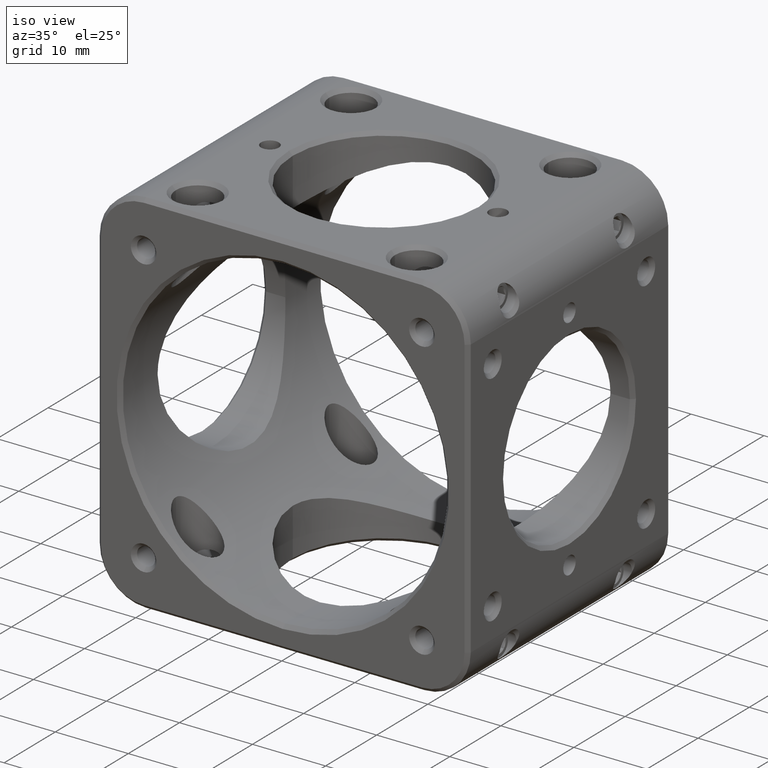
[diagram: clean part render]
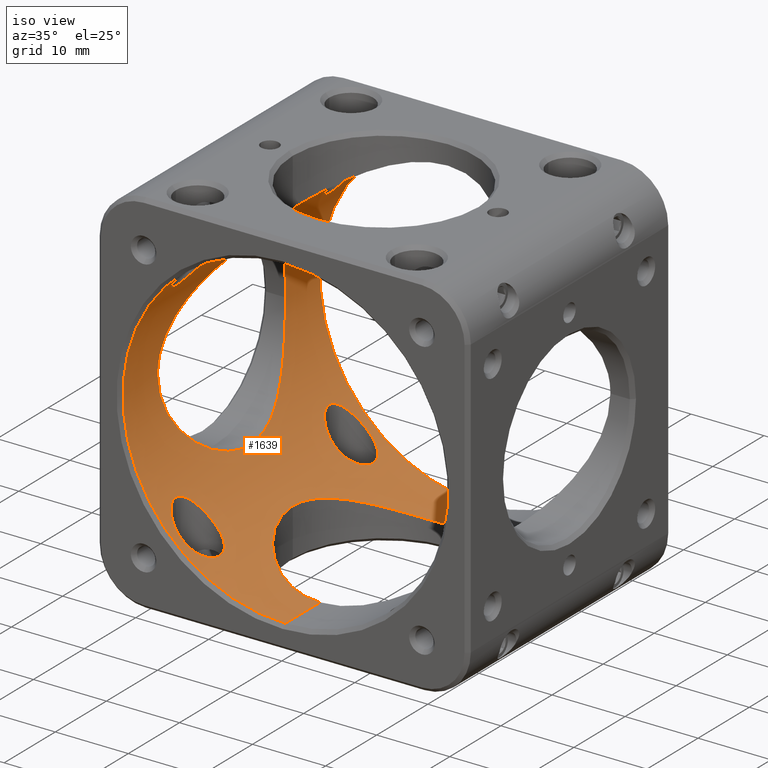
[diagram: same view with one face highlighted and labeled with its STEP entity id]
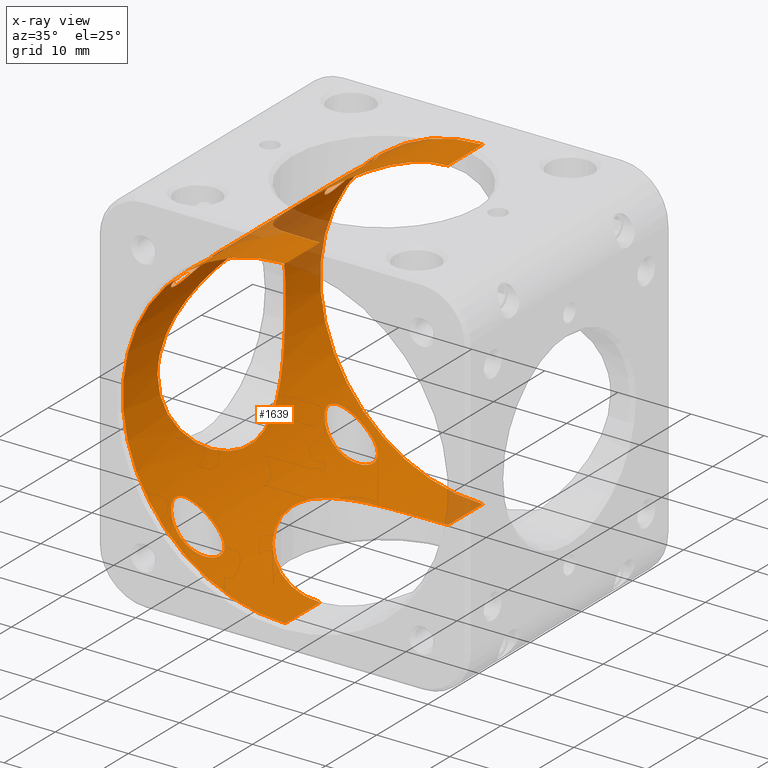
[diagram: x-ray of the same camera — body ghosted, the highlighted face saturated]
A machine part, iso view. The second image highlights one B-rep face of the part: STEP entity #1639.
The next image is the same camera in x-ray: the body ghosted, the highlighted face saturated — about 6% of this face is hidden behind the body in this view.
In plain terms, the highlighted cylindrical surface (partial cylindrical patch) has radius 22.25 mm, axis along (-0, 1, -0).
Its self-contained STEP definition (entity closure, byte-faithful):
#8 = ORIENTED_EDGE ( 'NONE', *, *, #8011, .F. ) ;
#39 = CARTESIAN_POINT ( 'NONE',  ( -12.41488327729747532, 1.674803855735832459, 18.46542709369250090 ) ) ;
#73 = CARTESIAN_POINT ( 'NONE',  ( -13.79505556848325654, 17.75418411774846206, -17.45869972766372413 ) ) ;
#125 = CARTESIAN_POINT ( 'NONE',  ( -12.00000000000000000, 15.23792619474833465, -18.73666192255173613 ) ) ;
#138 = CARTESIAN_POINT ( 'NONE',  ( -13.79505556848325476, 12.24581588225152551, 17.45869972766372058 ) ) ;
#186 = CARTESIAN_POINT ( 'NONE',  ( -12.02875001941759336, 15.47536282472691482, -18.71833028145066180 ) ) ;
#251 = CARTESIAN_POINT ( 'NONE',  ( -13.79588235916865457, 12.24541867755313795, -17.45805373991466425 ) ) ;
#294 = CARTESIAN_POINT ( 'NONE',  ( -12.81348480790011912, -12.93476575697754960, -18.19077863599402889 ) ) ;
#304 = CARTESIAN_POINT ( 'NONE',  ( -11.99999999999999822, 15.00000000000000000, -18.73666192255174323 ) ) ;
#343 = CARTESIAN_POINT ( 'NONE',  ( -12.60973464287786960, -13.18392130856044275, -18.33204632092969888 ) ) ;
#400 = CARTESIAN_POINT ( 'NONE',  ( -14.50113425189661243, -12.03650923793105854, 16.87702869463133837 ) ) ;
#414 = CARTESIAN_POINT ( 'NONE',  ( -12.22170397085704963, 13.86233355054034888, -18.59286624457005033 ) ) ;
#422 = CARTESIAN_POINT ( 'NONE',  ( -0.8353372000461107838, -12.47917590151520706, 22.23828011785608183 ) ) ;
#450 = CARTESIAN_POINT ( 'NONE',  ( -18.00000000000001421, -14.76273966887648825, 13.07908635952851206 ) ) ;
#455 = CARTESIAN_POINT ( 'NONE',  ( -13.45131488352045501, -12.42337514420591305, -17.72489442063470122 ) ) ;
#470 = CARTESIAN_POINT ( 'NONE',  ( -17.79372570802602738, 13.88756676944614732, -13.35917179875744765 ) ) ;
#480 = VERTEX_POINT ( 'NONE', #11948 ) ;
#534 = CARTESIAN_POINT ( 'NONE',  ( -11.36574829085552985, -5.218507903126482717, 19.12892462655974413 ) ) ;
#536 = CARTESIAN_POINT ( 'NONE',  ( -21.34629522557392534, -10.81689262711356925, 6.316014433569830722 ) ) ;
#572 = CARTESIAN_POINT ( 'NONE',  ( -13.79588235916865635, -12.24541867755314328, 17.45805373991467135 ) ) ;
#587 = CARTESIAN_POINT ( 'NONE',  ( -11.19173148457873523, 5.581922116532469502, -19.23164639372507168 ) ) ;
#602 = CARTESIAN_POINT ( 'NONE',  ( -19.92420392742108248, -7.652010457239535768, 9.917070901047992493 ) ) ;
#640 = CARTESIAN_POINT ( 'NONE',  ( -2.899276886964556432, 12.16618817541360897, -22.06408608537203619 ) ) ;
#660 = CARTESIAN_POINT ( 'NONE',  ( -22.00931594835591198, -12.06681509792529639, 3.288506668221568674 ) ) ;
#707 = EDGE_LOOP ( 'NONE', ( #846, #6398 ) ) ;
#719 = CARTESIAN_POINT ( 'NONE',  ( -18.62909504268264982, 2.897008049554316678, 12.16672118487253940 ) ) ;
#769 = CARTESIAN_POINT ( 'NONE',  ( -6.328808317284181584, -10.80952224001611306, 21.34253271530271689 ) ) ;
#800 = CARTESIAN_POINT ( 'NONE',  ( -12.26677640467745789, -16.24182541867797624, -18.56319870325923560 ) ) ;
#820 = ORIENTED_EDGE ( 'NONE', *, *, #3227, .F. ) ;
#838 = AXIS2_PLACEMENT_3D ( 'NONE', #2325, #7139, #14015 ) ;
#846 = ORIENTED_EDGE ( 'NONE', *, *, #6126, .T. ) ;
#948 = CARTESIAN_POINT ( 'NONE',  ( -14.50146108803319045, -17.96353878748405108, 16.87674578168335771 ) ) ;
#972 = CARTESIAN_POINT ( 'NONE',  ( -12.14279392609082109, -15.92173056095265515, -18.64449727957897096 ) ) ;
#1015 = B_SPLINE_CURVE_WITH_KNOTS ( 'NONE', 3,
 ( #5722, #11104, #3169, #8470, #12552, #8415, #9848, #15194, #13620, #13669, #13780, #11155, #8229, #16546, #5551, #4403, #5665, #16430, #5613, #3063, #7123, #455, #12424, #16318, #294, #343, #5786, #15088, #4459, #1632, #9629, #10981, #1687, #11045 ),
 .UNSPECIFIED., .F., .F.,
 ( 4, 2, 2, 2, 2, 2, 2, 2, 2, 2, 2, 2, 2, 2, 2, 2, 4 ),
 ( 0.01123870423941456323, 0.01159017442663269962, 0.01194164461385083600, 0.01264458498828711051, 0.01334752536272338502, 0.01405046573715965780, 0.01545634648603221722, 0.01686222723490477665, 0.01756516760934105637, 0.01826810798377733955, 0.01897104835821361926, 0.01967398873264990244, 0.02037692910708618216, 0.02072839929430431855, 0.02107986948152245840, 0.02178280985595873812, 0.02248575023039501436 ),
 .UNSPECIFIED. ) ;
#1020 = CARTESIAN_POINT ( 'NONE',  ( -18.85231382512017717, 4.092416348424860573, 11.81836946140424871 ) ) ;
#1068 = CARTESIAN_POINT ( 'NONE',  ( -12.54545272172755865, -16.72841259843926309, 18.37605549357652635 ) ) ;
#1101 = DIRECTION ( 'NONE',  ( 0.000000000000000000, 0.000000000000000000, 1.000000000000000000 ) ) ;
#1102 = CARTESIAN_POINT ( 'NONE',  ( -12.50000000000000000, -0.8468862562033112606, -18.40686013419998801 ) ) ;
#1151 = CARTESIAN_POINT ( 'NONE',  ( -16.48886123409472759, 12.37374166761516925, 14.94605002832414087 ) ) ;
#1247 = B_SPLINE_CURVE_WITH_KNOTS ( 'NONE', 3,
 ( #8196, #3031, #422, #11277, #6034, #1999, #8669, #4648, #1877, #8739, #769, #5856, #2113, #3135, #7146, #5972, #15389, #12509, #534, #12633, #3187, #12574, #4536, #15277 ),
 .UNSPECIFIED., .F., .F.,
 ( 4, 2, 2, 2, 2, 2, 2, 2, 2, 2, 2, 4 ),
 ( 0.05990678027725761245, 0.06115108185273412239, 0.06239538342821063233, 0.06363968500368713532, 0.06488398657916363832, 0.06737258973011665819, 0.06986119288106967806, 0.07234979603202269793, 0.07359409760749921481, 0.07483839918297571780, 0.07732700233392872380, 0.07981560548488174367 ),
 .UNSPECIFIED. ) ;
#1272 = CARTESIAN_POINT ( 'NONE',  ( -17.79337042589171247, 13.88674931177792615, 13.35964235407428191 ) ) ;
#1283 = CARTESIAN_POINT ( 'NONE',  ( -10.82198026178749650, -6.307951741975459825, -19.44757897556450743 ) ) ;
#1289 = CARTESIAN_POINT ( 'NONE',  ( -22.19116249321766787, 12.39501475693766430, -1.669303254882710918 ) ) ;
#1321 = CARTESIAN_POINT ( 'NONE',  ( -15.86482413317443907, 17.87756349103133857, 15.60202334968413318 ) ) ;
#1333 = CARTESIAN_POINT ( 'NONE',  ( -8.561781816095622943, -9.116207911368199746, -20.53905818620672719 ) ) ;
#1356 = CARTESIAN_POINT ( 'NONE',  ( -22.23793507089737176, 12.47855978235303986, -0.8417303248106000613 ) ) ;
#1372 = CARTESIAN_POINT ( 'NONE',  ( -17.97151379656106585, 15.47072307308295080, 13.11849741714583040 ) ) ;
#1383 = EDGE_CURVE ( 'NONE', #6947, #14356, #9430, .T. ) ;
#1386 = CARTESIAN_POINT ( 'NONE',  ( -12.50000000000000000, 0.8468862562033117047, 18.40686013419995959 ) ) ;
#1420 = CARTESIAN_POINT ( 'NONE',  ( -13.28478342069609397, 17.46977752315768839, -17.84981996176115970 ) ) ;
#1483 = CARTESIAN_POINT ( 'NONE',  ( -12.81348480790012268, 17.06523424302245573, -18.19077863599402534 ) ) ;
#1491 = EDGE_CURVE ( 'NONE', #17057, #3812, #6325, .T. ) ;
#1587 = CARTESIAN_POINT ( 'NONE',  ( -17.86692315577269596, 14.08773574355904934, -13.26059348480904454 ) ) ;
#1632 = CARTESIAN_POINT ( 'NONE',  ( -12.21676603074855549, -13.85783146323212023, -18.59644775052128196 ) ) ;
#1639 = ADVANCED_FACE ( 'NONE', ( #2898, #14192, #14426, #10012, #1879, #6430 ), #4971, .F. ) ;
#1643 = CARTESIAN_POINT ( 'NONE',  ( -13.28419928576556330, 12.53056994474724029, -17.85026132571988811 ) ) ;
#1682 = CARTESIAN_POINT ( 'NONE',  ( -12.14279392609081931, -14.07826943904735906, 18.64449727957897096 ) ) ;
#1687 = CARTESIAN_POINT ( 'NONE',  ( -11.99999999999999645, -14.76207380525166712, -18.73666192255173613 ) ) ;
#1738 = CARTESIAN_POINT ( 'NONE',  ( -18.00000000000000000, -15.00000000000000178, 13.07908635952833620 ) ) ;
#1877 = CARTESIAN_POINT ( 'NONE',  ( -4.475803429183170756, -11.67851166042718347, 21.79866159330386921 ) ) ;
#1879 = FACE_BOUND ( 'NONE', #9171, .T. ) ;
#1907 = VERTEX_POINT ( 'NONE', #16484 ) ;
#1935 = EDGE_CURVE ( 'NONE', #10874, #4624, #1015, .T. ) ;
#1988 = CARTESIAN_POINT ( 'NONE',  ( -11.83541807092672293, 4.101842862750438634, -18.84461051349000371 ) ) ;
#1999 = CARTESIAN_POINT ( 'NONE',  ( -2.899276886964561761, -12.16618817541360897, 22.06408608537203619 ) ) ;
#2003 = CARTESIAN_POINT ( 'NONE',  ( -21.01031687310262797, 10.13213306518314027, 7.331760803126080361 ) ) ;
#2088 = CARTESIAN_POINT ( 'NONE',  ( -11.99999999999999645, -15.00000000000000000, -18.73666192255174323 ) ) ;
#2113 = CARTESIAN_POINT ( 'NONE',  ( -8.291416473598083314, -9.388257627271316963, 20.65652357377762272 ) ) ;
#2159 = ORIENTED_EDGE ( 'NONE', *, *, #5385, .F. ) ;
#2246 = CARTESIAN_POINT ( 'NONE',  ( -13.79588235916865280, -17.75458132244687093, -17.45805373991466070 ) ) ;
#2252 = LINE ( 'NONE', #3791, #16084 ) ;
#2280 = CARTESIAN_POINT ( 'NONE',  ( -19.12983148734922878, -5.222039868866092505, 11.36424697134342132 ) ) ;
#2325 = CARTESIAN_POINT ( 'NONE',  ( -1.121620565922936265E-15, -19.80000000000001137, 0.000000000000000000 ) ) ;
#2327 = CARTESIAN_POINT ( 'NONE',  ( -17.28823892919774963, -16.94915571065262938, 14.00756670308344631 ) ) ;
#2370 = CARTESIAN_POINT ( 'NONE',  ( -22.23793547025715966, -12.47856079405286245, -0.8421463504519587362 ) ) ;
#2418 = CARTESIAN_POINT ( 'NONE',  ( 4.023096720318525502E-15, -12.50000000000004086, -22.25000000000002842 ) ) ;
#2574 = CARTESIAN_POINT ( 'NONE',  ( -16.77578105169218858, 12.55644791555933715, 14.62182949597355375 ) ) ;
#2592 = CARTESIAN_POINT ( 'NONE',  ( -0.8396548195494931699, 12.49999999999999822, 22.25000000000000000 ) ) ;
#2593 = CARTESIAN_POINT ( 'NONE',  ( -19.45269995213232761, 6.301585092791308185, -10.80296553903187728 ) ) ;
#2609 = CARTESIAN_POINT ( 'NONE',  ( -22.25000000000000355, 12.49999999999998401, -7.982443548481081212E-16 ) ) ;
#2624 = CARTESIAN_POINT ( 'NONE',  ( -14.85213006866468000, 18.00153921764722753, -16.56898169142490929 ) ) ;
#2633 = CARTESIAN_POINT ( 'NONE',  ( -12.26677640467746322, 16.24182541867797980, 18.56319870325923560 ) ) ;
#2645 = CARTESIAN_POINT ( 'NONE',  ( -4.474073852536498919, -11.67900703782745353, -21.79893779722987901 ) ) ;
#2652 = CARTESIAN_POINT ( 'NONE',  ( -8.265683804952690394, 9.385671348607635522, 20.66039040391869008 ) ) ;
#2689 = CARTESIAN_POINT ( 'NONE',  ( -17.28823892919775318, 16.94915571065263293, -14.00756670308343743 ) ) ;
#2718 = CARTESIAN_POINT ( 'NONE',  ( -11.82081606286220143, 4.085431977946331727, 18.85077988534774107 ) ) ;
#2748 = CARTESIAN_POINT ( 'NONE',  ( -12.36843086696680771, 16.44484565665725384, -18.49562389285753383 ) ) ;
#2812 = CARTESIAN_POINT ( 'NONE',  ( -12.13778745138281501, 14.07154128321091768, 18.64781036315432061 ) ) ;
#2855 = CARTESIAN_POINT ( 'NONE',  ( -12.13778745138281678, 15.92845871678908232, -18.64781036315431706 ) ) ;
#2898 = FACE_BOUND ( 'NONE', #15072, .T. ) ;
#3004 = CARTESIAN_POINT ( 'NONE',  ( -14.32525097294015737, -12.07111497754450902, 17.02649832954862319 ) ) ;
#3013 = B_SPLINE_CURVE_WITH_KNOTS ( 'NONE', 3,
 ( #7863, #1386, #39, #4335, #14722, #2718, #5258, #6666, #13714, #17364, #10695, #12074, #2652, #17296, #12025, #3987, #16363, #5652, #8283, #15076, #7003, #9249, #2592, #8346 ),
 .UNSPECIFIED., .F., .F.,
 ( 4, 2, 2, 2, 2, 2, 2, 2, 2, 2, 2, 4 ),
 ( 1.054804346677933624E-18, 0.002498874894794465840, 0.003748312342191697892, 0.004997749789588930812, 0.007496624684383396651, 0.009995499579177861624, 0.01124493702657509975, 0.01249437447397233440, 0.01499324936876680718, 0.01624268681616404530, 0.01749212426356128863, 0.01999099915835576835 ),
 .UNSPECIFIED. ) ;
#3019 = CARTESIAN_POINT ( 'NONE',  ( -12.02786515596587158, 14.53032586909919388, -18.71889677155881770 ) ) ;
#3031 = CARTESIAN_POINT ( 'NONE',  ( -0.4163578200255254602, -12.49999999999999822, 22.25000000000000000 ) ) ;
#3063 = CARTESIAN_POINT ( 'NONE',  ( -13.97306370796661490, -12.17525756300248574, -17.31670081297954766 ) ) ;
#3072 = CARTESIAN_POINT ( 'NONE',  ( -14.32525097294016447, 12.07111497754450902, -17.02649832954862319 ) ) ;
#3135 = CARTESIAN_POINT ( 'NONE',  ( -9.418069488582744953, -8.257538103024334220, 20.16778422139901394 ) ) ;
#3169 = CARTESIAN_POINT ( 'NONE',  ( -17.99298137436631251, -14.76424149508663675, -13.08876064621955493 ) ) ;
#3187 = CARTESIAN_POINT ( 'NONE',  ( -12.07943488686369449, -3.322521839831876989, 18.68662855040676973 ) ) ;
#3190 = CARTESIAN_POINT ( 'NONE',  ( -18.62802346860428671, -2.890125387008673830, 12.16835965609823056 ) ) ;
#3227 = EDGE_CURVE ( 'NONE', #3440, #15033, #17155, .T. ) ;
#3251 = CARTESIAN_POINT ( 'NONE',  ( -18.93994921486637040, 4.476568174186577487, 11.67795426536478764 ) ) ;
#3308 = CARTESIAN_POINT ( 'NONE',  ( -19.22549593997758777, 5.597243925700142952, 11.20615786987583817 ) ) ;
#3406 = CARTESIAN_POINT ( 'NONE',  ( -2.086621290480727087, 12.33158354701346759, -22.15571512815840194 ) ) ;
#3440 = VERTEX_POINT ( 'NONE', #16436 ) ;
#3459 = B_SPLINE_CURVE_WITH_KNOTS ( 'NONE', 3,
 ( #2088, #15538, #16879, #6168, #972, #10308, #800, #16946, #15473, #8882, #10249, #3628, #4735, #2246, #11600, #13013, #7399, #14340, #9293, #7793, #6350, #3856, #10432, #7851, #9062, #7742, #13252, #5199, #14528, #14584, #3804, #6417, #6538, #13135 ),
 .UNSPECIFIED., .F., .F.,
 ( 4, 2, 2, 2, 2, 2, 2, 2, 2, 2, 2, 2, 2, 2, 2, 2, 4 ),
 ( 1.734723475976807094E-18, 0.0007024190149634200681, 0.001053628522445126687, 0.001404838029926833414, 0.002107257044890243833, 0.002809676059853654685, 0.003512095074817065104, 0.004214514089780476390, 0.004916933104743887242, 0.005619352119707297227, 0.006321771134670705478, 0.007024190149634115463, 0.008429028179560928494, 0.009131447194524338479, 0.009833866209487746729, 0.01053628522445115498, 0.01123870423941456323 ),
 .UNSPECIFIED. ) ;
#3548 = VERTEX_POINT ( 'NONE', #5956 ) ;
#3581 = B_SPLINE_CURVE_WITH_KNOTS ( 'NONE', 3,
 ( #304, #11059, #3019, #4242, #9693, #414, #9640, #8247, #5681, #11163, #11113, #1643, #4292, #251, #13795, #3072, #10995, #15153, #16329, #15040, #12434, #12503, #8425, #9578, #7076, #6920, #4414, #15098, #5800, #470, #1587, #16554, #5732, #16439 ),
 .UNSPECIFIED., .F., .F.,
 ( 4, 2, 2, 2, 2, 2, 2, 2, 2, 2, 2, 2, 2, 2, 2, 2, 4 ),
 ( 1.734723475976807094E-18, 0.0007024190149634043472, 0.001053628522445108255, 0.001404838029926811947, 0.002107257044890218246, 0.002809676059853624761, 0.003512095074817030843, 0.004214514089780437359, 0.004916933104743843874, 0.005619352119707250390, 0.006321771134670660375, 0.007024190149634073829, 0.008429028179560907677, 0.009131447194524322866, 0.009833866209487738055, 0.01053628522445115324, 0.01123870423941456843 ),
 .UNSPECIFIED. ) ;
#3613 = CARTESIAN_POINT ( 'NONE',  ( -19.56800820683208286, -6.647737258399154747, 10.59341678434398659 ) ) ;
#3628 = CARTESIAN_POINT ( 'NONE',  ( -13.28419928576556330, -17.46943005525276149, -17.85026132571988811 ) ) ;
#3653 = CARTESIAN_POINT ( 'NONE',  ( -17.16443973541872126, -17.08477502742414700, 14.15927489298403685 ) ) ;
#3663 = CARTESIAN_POINT ( 'NONE',  ( -19.44588786361204313, 6.302326704385585288, 10.82481071991195343 ) ) ;
#3700 = CARTESIAN_POINT ( 'NONE',  ( -22.06474436925068261, -12.16738104935483022, -2.894244580655392252 ) ) ;
#3722 = CARTESIAN_POINT ( 'NONE',  ( -12.36843086696680771, -16.44484565665726805, 18.49562389285754094 ) ) ;
#3759 = CARTESIAN_POINT ( 'NONE',  ( -21.34374647782651024, -10.81205376148167119, -6.325412407067630305 ) ) ;
#3773 = CARTESIAN_POINT ( 'NONE',  ( -16.77578105169219214, -17.44355208444066818, 14.62182949597355375 ) ) ;
#3777 = ORIENTED_EDGE ( 'NONE', *, *, #13163, .T. ) ;
#3791 = CARTESIAN_POINT ( 'NONE',  ( 1.603218562179924332E-15, -19.80000000000001137, -22.25000000000000355 ) ) ;
#3804 = CARTESIAN_POINT ( 'NONE',  ( -17.86692315577269596, -15.91226425644094711, -13.26059348480904454 ) ) ;
#3812 = VERTEX_POINT ( 'NONE', #5323 ) ;
#3828 = CARTESIAN_POINT ( 'NONE',  ( -17.99298137436631251, -15.23575850491336325, 13.08876064621955670 ) ) ;
#3853 = CARTESIAN_POINT ( 'NONE',  ( -17.61543906088407496, 13.51617927299985844, 13.59339477959987086 ) ) ;
#3856 = CARTESIAN_POINT ( 'NONE',  ( -15.86482413317443907, -17.87756349103134568, -15.60202334968414029 ) ) ;
#3859 = CARTESIAN_POINT ( 'NONE',  ( -11.82081606286219611, -4.085431977946332616, -18.85077988534773752 ) ) ;
#3921 = VERTEX_POINT ( 'NONE', #5349 ) ;
#3931 = CARTESIAN_POINT ( 'NONE',  ( -18.93913212333950469, 4.473236519688637003, -11.67929070766395760 ) ) ;
#3968 = CARTESIAN_POINT ( 'NONE',  ( -12.41770627647395386, 16.54347837543916810, 18.46287270896290167 ) ) ;
#3982 = CARTESIAN_POINT ( 'NONE',  ( -2.885652229447645656, -12.16943377266133197, -22.06587698947554799 ) ) ;
#3986 = CARTESIAN_POINT ( 'NONE',  ( 1.603218633088722059E-15, 12.50000000000000000, -22.25000000000000355 ) ) ;
#3987 = CARTESIAN_POINT ( 'NONE',  ( -6.312183705341791295, 10.81939020911481997, 21.34753052815479180 ) ) ;
#4023 = CARTESIAN_POINT ( 'NONE',  ( -16.77452671613459501, 17.44443670055429152, 14.62326737532493581 ) ) ;
#4035 = EDGE_CURVE ( 'NONE', #3548, #1907, #1247, .T. ) ;
#4137 = CARTESIAN_POINT ( 'NONE',  ( -13.97341110064305880, 17.82484848372428488, 17.31641542052714300 ) ) ;
#4143 = CARTESIAN_POINT ( 'NONE',  ( -11.99999999999999645, -15.00000000000000178, 18.73666192255174323 ) ) ;
#4200 = CARTESIAN_POINT ( 'NONE',  ( -13.97306370796661312, 12.17525756300248219, 17.31670081297954411 ) ) ;
#4242 = CARTESIAN_POINT ( 'NONE',  ( -12.10887724638253005, 14.19070768346341715, -18.66651081403893997 ) ) ;
#4278 = CARTESIAN_POINT ( 'NONE',  ( -15.37045274602306932, -12.01801875552760990, 16.08933342587106097 ) ) ;
#4292 = CARTESIAN_POINT ( 'NONE',  ( -13.45121686258707250, 12.42339596596611528, -17.72497603297174606 ) ) ;
#4331 = VERTEX_POINT ( 'NONE', #6610 ) ;
#4335 = CARTESIAN_POINT ( 'NONE',  ( -12.16815562963038744, 2.890858394858080604, 18.62815596639782711 ) ) ;
#4340 = CARTESIAN_POINT ( 'NONE',  ( -14.85203349547291829, -11.99845865511788112, 16.56907037827678764 ) ) ;
#4347 = B_SPLINE_CURVE_WITH_KNOTS ( 'NONE', 3,
 ( #13614, #4511, #12368, #5606, #1682, #16425, #11255, #12420, #11040, #7059, #5781, #8529, #15190, #572, #9844, #3004, #400, #4340, #8292, #4278, #15082, #7118, #8410, #16540, #15135, #9725, #11192, #7009, #13884, #8464, #5661, #8355, #450, #1738 ),
 .UNSPECIFIED., .F., .F.,
 ( 4, 2, 2, 2, 2, 2, 2, 2, 2, 2, 2, 2, 2, 2, 2, 2, 4 ),
 ( 0.000000000000000000, 0.0007024190149634084671, 0.001053628522445114978, 0.001404838029926821922, 0.002107257044890232123, 0.002809676059853642976, 0.003512095074817053394, 0.004214514089780464247, 0.004916933104743875099, 0.005619352119707285952, 0.006321771134670696804, 0.007024190149634111993, 0.008429028179560933698, 0.009131447194524343683, 0.009833866209487755403, 0.01053628522445116539, 0.01123870423941457711 ),
 .UNSPECIFIED. ) ;
#4361 = EDGE_CURVE ( 'NONE', #1907, #6947, #3013, .T. ) ;
#4403 = CARTESIAN_POINT ( 'NONE',  ( -15.02800805110853766, -11.99521759264803222, -16.40964788974530464 ) ) ;
#4412 = CARTESIAN_POINT ( 'NONE',  ( -0.4163578200255230177, 12.50000000000000000, -22.25000000000000355 ) ) ;
#4414 = CARTESIAN_POINT ( 'NONE',  ( -17.28710310484166612, 13.04949638866098560, -14.00897185694102376 ) ) ;
#4459 = CARTESIAN_POINT ( 'NONE',  ( -12.36843086696681304, -13.55515434334274261, -18.49562389285754449 ) ) ;
#4511 = CARTESIAN_POINT ( 'NONE',  ( -12.00000000000000178, -14.76225027125075506, 18.73666192255175034 ) ) ;
#4536 = CARTESIAN_POINT ( 'NONE',  ( -12.50000000000000178, -0.8434050900574218135, 18.40686013419996669 ) ) ;
#4539 = CARTESIAN_POINT ( 'NONE',  ( -21.87469044944165475, 11.81948498941595460, 4.089397834892871231 ) ) ;
#4565 = CARTESIAN_POINT ( 'NONE',  ( -18.00000000000000355, 14.99999999999999822, -13.07908635952833265 ) ) ;
#4583 = CARTESIAN_POINT ( 'NONE',  ( -11.36574829085552807, 5.218507903126488046, -19.12892462655975478 ) ) ;
#4599 = CARTESIAN_POINT ( 'NONE',  ( -20.16832374830075025, 8.248015206926897491, 9.401126519772750711 ) ) ;
#4624 = VERTEX_POINT ( 'NONE', #12770 ) ;
#4648 = CARTESIAN_POINT ( 'NONE',  ( -4.087039068781437301, -11.82015597180825672, 21.87505759765566182 ) ) ;
#4682 = EDGE_CURVE ( 'NONE', #480, #5224, #2252, .T. ) ;
#4734 = EDGE_LOOP ( 'NONE', ( #13319, #16544 ) ) ;
#4735 = CARTESIAN_POINT ( 'NONE',  ( -13.45121686258706362, -17.57660403403388827, -17.72497603297173541 ) ) ;
#4756 = ORIENTED_EDGE ( 'NONE', *, *, #1935, .T. ) ;
#4788 = EDGE_CURVE ( 'NONE', #10284, #5452, #8480, .T. ) ;
#4808 = CARTESIAN_POINT ( 'NONE',  ( -6.328808317284162932, 10.80952224001612194, -21.34253271530272045 ) ) ;
#4911 = CARTESIAN_POINT ( 'NONE',  ( -21.54436671791789948, -11.19910821465682105, -5.612534779278010255 ) ) ;
#4932 = LINE ( 'NONE', #7453, #7827 ) ;
#4941 = CARTESIAN_POINT ( 'NONE',  ( -21.79900493868671418, -11.67913921027049007, 4.473883240858379295 ) ) ;
#4949 = EDGE_CURVE ( 'NONE', #15033, #3440, #13786, .T. ) ;
#4962 = CARTESIAN_POINT ( 'NONE',  ( -1.121620565922936265E-15, -19.30000000000003268, 0.000000000000000000 ) ) ;
#4969 = CARTESIAN_POINT ( 'NONE',  ( -18.62856065662482763, -2.893518738398928924, -12.16753759616078412 ) ) ;
#4971 = CYLINDRICAL_SURFACE ( 'NONE', #838, 22.25000000000000355 ) ;
#4988 = CARTESIAN_POINT ( 'NONE',  ( -12.96567866579088601, -17.21434090351860391, 18.08294002471788176 ) ) ;
#4999 = CARTESIAN_POINT ( 'NONE',  ( -19.45204269377656559, -6.299544653192580057, 10.80414438599290960 ) ) ;
#5034 = CARTESIAN_POINT ( 'NONE',  ( -19.92154365680039518, -7.624737261449704206, -9.913359639066792184 ) ) ;
#5054 = CARTESIAN_POINT ( 'NONE',  ( -12.21676603074855549, -16.14216853676787977, 18.59644775052127841 ) ) ;
#5109 = CARTESIAN_POINT ( 'NONE',  ( -18.00000000000000000, -15.00000000000000178, 13.07908635952833620 ) ) ;
#5171 = CARTESIAN_POINT ( 'NONE',  ( -17.86734520823563344, -15.91055540957145631, 13.26002066501819243 ) ) ;
#5182 = CARTESIAN_POINT ( 'NONE',  ( 1.298257489860139277E-15, 12.50000000000004086, 22.25000000000002842 ) ) ;
#5197 = CARTESIAN_POINT ( 'NONE',  ( -17.28823892919776384, 13.05084428934736707, 14.00756670308344098 ) ) ;
#5199 = CARTESIAN_POINT ( 'NONE',  ( -17.51260298498302959, -16.64988823557149544, -13.72603230858630496 ) ) ;
#5207 = CARTESIAN_POINT ( 'NONE',  ( -18.85144445717590145, 4.088370254186534325, -11.81975232854870406 ) ) ;
#5224 = VERTEX_POINT ( 'NONE', #13108 ) ;
#5242 = CARTESIAN_POINT ( 'NONE',  ( -14.50146108803318867, 12.03646121251595602, 16.87674578168335415 ) ) ;
#5258 = CARTESIAN_POINT ( 'NONE',  ( -11.67974506112432387, 4.472080481270413799, 18.93885311360091706 ) ) ;
#5259 = CARTESIAN_POINT ( 'NONE',  ( -21.01575273697968882, 10.14335316892037930, -7.315999711633397240 ) ) ;
#5298 = CARTESIAN_POINT ( 'NONE',  ( -11.99999999999999822, 15.00000000000000000, 18.73666192255173968 ) ) ;
#5323 = CARTESIAN_POINT ( 'NONE',  ( -11.99999999999999822, 15.00000000000000000, -18.73666192255174323 ) ) ;
#5349 = CARTESIAN_POINT ( 'NONE',  ( 1.633834732158606935E-15, -19.30000000000003268, 22.25000000000000355 ) ) ;
#5354 = CARTESIAN_POINT ( 'NONE',  ( -17.86734520823563699, 14.08944459042854547, 13.26002066501819598 ) ) ;
#5357 = ORIENTED_EDGE ( 'NONE', *, *, #4035, .F. ) ;
#5385 = EDGE_CURVE ( 'NONE', #11610, #13474, #13892, .T. ) ;
#5408 = CARTESIAN_POINT ( 'NONE',  ( -16.02545694904187812, 17.82432844774741554, 15.43690907281859381 ) ) ;
#5426 = VECTOR ( 'NONE', #8013, 1000.000000000000000 ) ;
#5452 = VERTEX_POINT ( 'NONE', #15380 ) ;
#5458 = CARTESIAN_POINT ( 'NONE',  ( -13.97306370796661490, 17.82474243699751426, -17.31670081297955832 ) ) ;
#5516 = CARTESIAN_POINT ( 'NONE',  ( -13.28419928576556153, 17.46943005525275439, 17.85026132571989166 ) ) ;
#5551 = CARTESIAN_POINT ( 'NONE',  ( -15.54215105269573982, -12.02946481221044372, -15.92872625333273362 ) ) ;
#5581 = CARTESIAN_POINT ( 'NONE',  ( -12.60973464287786783, 13.18392130856042854, 18.33204632092968467 ) ) ;
#5606 = CARTESIAN_POINT ( 'NONE',  ( -12.10887724638252294, -14.19070768346342248, 18.66651081403893997 ) ) ;
#5613 = CARTESIAN_POINT ( 'NONE',  ( -14.32549853820774466, -12.07103845001167386, -17.02629519493152443 ) ) ;
#5625 = CARTESIAN_POINT ( 'NONE',  ( -1.673978868862212144, 12.39457196378081782, -22.19091448283771228 ) ) ;
#5652 = CARTESIAN_POINT ( 'NONE',  ( -4.474073852536498919, 11.67900703782744998, 21.79893779722987546 ) ) ;
#5661 = CARTESIAN_POINT ( 'NONE',  ( -17.86692315577269596, -14.08773574355905289, 13.26059348480904632 ) ) ;
#5665 = CARTESIAN_POINT ( 'NONE',  ( -14.85213006866467644, -11.99846078235277247, -16.56898169142490929 ) ) ;
#5681 = CARTESIAN_POINT ( 'NONE',  ( -12.54074124352088937, 13.26843515623002467, -18.37987309780331913 ) ) ;
#5722 = CARTESIAN_POINT ( 'NONE',  ( -18.00000000000000000, -15.00000000000000178, -13.07908635952833443 ) ) ;
#5732 = CARTESIAN_POINT ( 'NONE',  ( -18.00000000000002132, 14.76273966887649003, -13.07908635952851384 ) ) ;
#5781 = CARTESIAN_POINT ( 'NONE',  ( -12.96411407713406660, -12.78703244537354955, 18.08406829934790494 ) ) ;
#5786 = CARTESIAN_POINT ( 'NONE',  ( -12.54545272172756043, -13.27158740156074401, -18.37605549357652990 ) ) ;
#5800 = CARTESIAN_POINT ( 'NONE',  ( -17.61550638967466753, 13.51624215260811468, -13.59331013243329345 ) ) ;
#5856 = CARTESIAN_POINT ( 'NONE',  ( -7.664575039235170806, -9.907263761617615572, 20.90004322695591199 ) ) ;
#5862 = CARTESIAN_POINT ( 'NONE',  ( -18.46504791733054773, -1.671454519977240816, 12.41545189184879661 ) ) ;
#5903 = CARTESIAN_POINT ( 'NONE',  ( -4.087039068781435525, 11.82015597180826028, -21.87505759765566893 ) ) ;
#5921 = CARTESIAN_POINT ( 'NONE',  ( -21.87608745818238987, -11.82206583347466555, 4.081796435816775315 ) ) ;
#5956 = CARTESIAN_POINT ( 'NONE',  ( -1.121620495014961714E-15, -12.50000000000000000, 22.25000000000000355 ) ) ;
#5972 = CARTESIAN_POINT ( 'NONE',  ( -10.59813043166944979, -6.640168184111363558, 19.56544531858353508 ) ) ;
#5980 = CARTESIAN_POINT ( 'NONE',  ( -19.80023983030976709, 7.303034582209256165, 10.15269166988432836 ) ) ;
#5986 = CARTESIAN_POINT ( 'NONE',  ( 1.603218562179924332E-15, 19.29999999999995453, -22.25000000000000355 ) ) ;
#6034 = CARTESIAN_POINT ( 'NONE',  ( -2.086621290480732860, -12.33158354701346937, 22.15571512815840549 ) ) ;
#6053 = CARTESIAN_POINT ( 'NONE',  ( -17.79337042589171247, 16.11325068822207029, -13.35964235407428191 ) ) ;
#6066 = CARTESIAN_POINT ( 'NONE',  ( -17.99298137436631251, 15.23575850491335970, -13.08876064621956203 ) ) ;
#6126 = EDGE_CURVE ( 'NONE', #17354, #4331, #4347, .T. ) ;
#6159 = VECTOR ( 'NONE', #12779, 1000.000000000000000 ) ;
#6168 = CARTESIAN_POINT ( 'NONE',  ( -12.10887724638253005, -15.80929231653658107, -18.66651081403894352 ) ) ;
#6253 = EDGE_CURVE ( 'NONE', #3921, #3548, #7010, .T. ) ;
#6258 = CARTESIAN_POINT ( 'NONE',  ( -15.86802566449101803, -17.89144808851822432, 15.60361233040137563 ) ) ;
#6269 = CARTESIAN_POINT ( 'NONE',  ( -22.25000000000000355, 12.49999999999998401, 0.8455739084455259347 ) ) ;
#6320 = CARTESIAN_POINT ( 'NONE',  ( -14.32549853820773755, -17.92896154998833325, 17.02629519493152443 ) ) ;
#6325 = B_SPLINE_CURVE_WITH_KNOTS ( 'NONE', 3,
 ( #16473, #12472, #6066, #8771, #17124, #14770, #6053, #14568, #7663, #2689, #14125, #12917, #9443, #10292, #7897, #13716, #2624, #6757, #12108, #5458, #73, #9341, #1420, #9462, #1483, #8075, #17338, #7963, #2748, #12224, #2855, #186, #125, #10835 ),
 .UNSPECIFIED., .F., .F.,
 ( 4, 2, 2, 2, 2, 2, 2, 2, 2, 2, 2, 2, 2, 2, 2, 2, 4 ),
 ( 0.01123870423941456843, 0.01159017442663270829, 0.01194164461385084815, 0.01264458498828712786, 0.01334752536272340757, 0.01405046573715968729, 0.01545634648603225539, 0.01686222723490482522, 0.01756516760934110147, 0.01826810798377738118, 0.01897104835821365743, 0.01967398873264993714, 0.02037692910708621685, 0.02072839929430434977, 0.02107986948152248269, 0.02178280985595875546, 0.02248575023039503171 ),
 .UNSPECIFIED. ) ;
#6331 = CARTESIAN_POINT ( 'NONE',  ( -18.93868441896029253, -4.471354960033758985, 11.68001688522309856 ) ) ;
#6350 = CARTESIAN_POINT ( 'NONE',  ( -15.53773748561404844, -17.95620209437766945, -15.92778990346078949 ) ) ;
#6364 = CARTESIAN_POINT ( 'NONE',  ( -18.40691142455147755, 0.8452532766739357939, -12.49992447245344884 ) ) ;
#6386 = CARTESIAN_POINT ( 'NONE',  ( -12.13778745138281501, -15.92845871678908942, 18.64781036315432416 ) ) ;
#6398 = ORIENTED_EDGE ( 'NONE', *, *, #11000, .T. ) ;
#6417 = CARTESIAN_POINT ( 'NONE',  ( -17.97151379656106585, -15.47072307308295080, -13.11849741714582684 ) ) ;
#6430 = FACE_OUTER_BOUND ( 'NONE', #9041, .T. ) ;
#6488 = CARTESIAN_POINT ( 'NONE',  ( -22.00817554844031321, -12.06474003005867424, -3.296284134886574346 ) ) ;
#6506 = CARTESIAN_POINT ( 'NONE',  ( -16.48886123409472049, -17.62625833238483608, 14.94605002832413909 ) ) ;
#6535 = CARTESIAN_POINT ( 'NONE',  ( -17.99298137436630896, 14.76424149508663675, 13.08876064621955848 ) ) ;
#6538 = CARTESIAN_POINT ( 'NONE',  ( -18.00000000000001421, -15.23726033112351175, -13.07908635952850851 ) ) ;
#6552 = CARTESIAN_POINT ( 'NONE',  ( -19.23369237545061594, 5.589039420818884274, -11.18823835425990687 ) ) ;
#6604 = CARTESIAN_POINT ( 'NONE',  ( -12.50000000000000000, 9.121030103782787432E-16, -18.40686013419996669 ) ) ;
#6610 = CARTESIAN_POINT ( 'NONE',  ( -18.00000000000000000, -15.00000000000000178, 13.07908635952833620 ) ) ;
#6611 = CARTESIAN_POINT ( 'NONE',  ( -21.79941413480623069, 11.67990515595613310, -4.471946800249331666 ) ) ;
#6627 = AXIS2_PLACEMENT_3D ( 'NONE', #4962, #11732, #1101 ) ;
#6647 = CARTESIAN_POINT ( 'NONE',  ( -13.45121686258706895, 17.57660403403388472, 17.72497603297173896 ) ) ;
#6666 = CARTESIAN_POINT ( 'NONE',  ( -11.20580669720552791, 5.598543592769051891, 19.22573286172725560 ) ) ;
#6709 = CARTESIAN_POINT ( 'NONE',  ( -17.51260298498303314, 16.64988823557149544, 13.72603230858630319 ) ) ;
#6757 = CARTESIAN_POINT ( 'NONE',  ( -14.50146108803318512, 17.96353878748403687, -16.87674578168335060 ) ) ;
#6764 = CARTESIAN_POINT ( 'NONE',  ( -17.16318705092065500, 17.08606705190707586, 14.16079302423591457 ) ) ;
#6767 = CARTESIAN_POINT ( 'NONE',  ( -12.96567866579088957, 12.78565909648139076, 18.08294002471789952 ) ) ;
#6867 = VERTEX_POINT ( 'NONE', #5986 ) ;
#6873 = CARTESIAN_POINT ( 'NONE',  ( -14.32525097294015559, 17.92888502245548921, 17.02649832954861253 ) ) ;
#6920 = CARTESIAN_POINT ( 'NONE',  ( -17.16318705092065855, 12.91393294809293124, -14.16079302423591635 ) ) ;
#6938 = CARTESIAN_POINT ( 'NONE',  ( -12.36843086696680771, 13.55515434334273550, 18.49562389285754094 ) ) ;
#6947 = VERTEX_POINT ( 'NONE', #5182 ) ;
#7003 = CARTESIAN_POINT ( 'NONE',  ( -2.885652229447644324, 12.16943377266133375, 22.06587698947554799 ) ) ;
#7009 = CARTESIAN_POINT ( 'NONE',  ( -17.51260298498303314, -13.35011176442849745, 13.72603230858630674 ) ) ;
#7010 = LINE ( 'NONE', #12724, #6159 ) ;
#7059 = CARTESIAN_POINT ( 'NONE',  ( -12.81294162077238319, -12.93528547122136096, 18.19116414776631530 ) ) ;
#7076 = CARTESIAN_POINT ( 'NONE',  ( -16.77452671613460211, 12.55556329944569427, -14.62326737532493937 ) ) ;
#7118 = CARTESIAN_POINT ( 'NONE',  ( -15.86482413317443907, -12.12243650896865965, 15.60202334968413496 ) ) ;
#7123 = CARTESIAN_POINT ( 'NONE',  ( -13.79505556848325298, -12.24581588225152906, -17.45869972766371347 ) ) ;
#7139 = DIRECTION ( 'NONE',  ( -0.000000000000000000, 1.000000000000000000, -0.000000000000000000 ) ) ;
#7146 = CARTESIAN_POINT ( 'NONE',  ( -9.923996716536914064, -7.642846185160065531, 19.92071449056999199 ) ) ;
#7208 = CARTESIAN_POINT ( 'NONE',  ( -22.06506254128812827, 12.16795745945317719, 2.891788159180891604 ) ) ;
#7217 = ORIENTED_EDGE ( 'NONE', *, *, #4361, .F. ) ;
#7251 = CARTESIAN_POINT ( 'NONE',  ( -12.41477733867947997, 1.680833779155447516, -18.46553918513800951 ) ) ;
#7267 = CARTESIAN_POINT ( 'NONE',  ( -19.23323652120901528, -5.587457826044800235, 11.18901755263257769 ) ) ;
#7319 = CARTESIAN_POINT ( 'NONE',  ( -20.89386683027340297, 9.889007279706044429, 7.656268872023921368 ) ) ;
#7399 = CARTESIAN_POINT ( 'NONE',  ( -14.50113425189661243, -17.96349076206894679, -16.87702869463133837 ) ) ;
#7413 = CARTESIAN_POINT ( 'NONE',  ( -10.59813043166944624, 6.640168184111364447, -19.56544531858353153 ) ) ;
#7453 = CARTESIAN_POINT ( 'NONE',  ( 1.603218562179924332E-15, -19.80000000000001137, -22.25000000000000355 ) ) ;
#7535 = CARTESIAN_POINT ( 'NONE',  ( -15.54215105269574337, -17.97053518778956160, 15.92872625333272651 ) ) ;
#7574 = CARTESIAN_POINT ( 'NONE',  ( -21.87420341195074158, -11.81858434539986824, -4.092005029502562508 ) ) ;
#7601 = CARTESIAN_POINT ( 'NONE',  ( -21.34462449887934810, 10.81375588626570661, 6.322343816306379871 ) ) ;
#7633 = CARTESIAN_POINT ( 'NONE',  ( -22.25000000000000711, -12.50000000000002132, -0.4219469501819061996 ) ) ;
#7650 = CARTESIAN_POINT ( 'NONE',  ( -18.00000000000001421, -15.11871821693742746, 13.07908635952851206 ) ) ;
#7663 = CARTESIAN_POINT ( 'NONE',  ( -17.51338814416543599, 16.64867383621941599, -13.72502699181921137 ) ) ;
#7682 = CARTESIAN_POINT ( 'NONE',  ( -5.602441861364114040, -11.20396421363130557, -21.54690810515115018 ) ) ;
#7692 = CARTESIAN_POINT ( 'NONE',  ( -18.69538979208273233, -3.294921907902907066, -12.06507532646428871 ) ) ;
#7711 = CARTESIAN_POINT ( 'NONE',  ( -12.00000000000000000, -15.23792619474834176, 18.73666192255175034 ) ) ;
#7740 = CARTESIAN_POINT ( 'NONE',  ( -17.51338814416543954, 13.35132616378057691, 13.72502699181921493 ) ) ;
#7742 = CARTESIAN_POINT ( 'NONE',  ( -17.16318705092065500, -17.08606705190706876, -14.16079302423592168 ) ) ;
#7745 = CARTESIAN_POINT ( 'NONE',  ( -11.67974506112432387, -4.472080481270415575, -18.93885311360091350 ) ) ;
#7752 = CARTESIAN_POINT ( 'NONE',  ( -19.44525614389420198, -6.300304638928793999, -10.82590364144784267 ) ) ;
#7776 = CARTESIAN_POINT ( 'NONE',  ( -1.121620565922936265E-15, -19.80000000000001137, 22.25000000000000355 ) ) ;
#7793 = CARTESIAN_POINT ( 'NONE',  ( -15.37045274602306577, -17.98198124447239366, -16.08933342587106452 ) ) ;
#7800 = CARTESIAN_POINT ( 'NONE',  ( -6.312183705341787743, -10.81939020911482174, -21.34753052815479180 ) ) ;
#7804 = CARTESIAN_POINT ( 'NONE',  ( -22.19101745131995784, -12.39475538428809287, -1.671445162161794951 ) ) ;
#7827 = VECTOR ( 'NONE', #11475, 1000.000000000000000 ) ;
#7851 = CARTESIAN_POINT ( 'NONE',  ( -16.49019225405078259, -17.62543321879171287, -14.94455713685410458 ) ) ;
#7863 = CARTESIAN_POINT ( 'NONE',  ( -12.50000000000000000, 7.406435153590140483E-16, 18.40686013419996669 ) ) ;
#7865 = CARTESIAN_POINT ( 'NONE',  ( -19.13025341248030387, 5.223573011022279111, -11.36353648270297434 ) ) ;
#7897 = CARTESIAN_POINT ( 'NONE',  ( -15.54215105269574337, 17.97053518778955805, -15.92872625333272296 ) ) ;
#7924 = CARTESIAN_POINT ( 'NONE',  ( -9.917826920688913361, -7.651288854622317004, -19.92386242596036183 ) ) ;
#7932 = CARTESIAN_POINT ( 'NONE',  ( -22.00938578596962714, 12.06693991451452064, -3.287917584918343294 ) ) ;
#7963 = CARTESIAN_POINT ( 'NONE',  ( -12.42493971897660821, 16.54313868489320782, -18.45775372237648071 ) ) ;
#7971 = CARTESIAN_POINT ( 'NONE',  ( -17.86692315577269596, 15.91226425644095066, 13.26059348480904454 ) ) ;
#8011 = EDGE_CURVE ( 'NONE', #13474, #5224, #14923, .T. ) ;
#8013 = DIRECTION ( 'NONE',  ( -0.000000000000000000, 1.000000000000000000, -0.000000000000000000 ) ) ;
#8075 = CARTESIAN_POINT ( 'NONE',  ( -12.60973464287786783, 16.81607869143956790, -18.33204632092969533 ) ) ;
#8086 = CARTESIAN_POINT ( 'NONE',  ( -16.49019225405078970, 17.62543321879170222, 14.94455713685410458 ) ) ;
#8089 = CARTESIAN_POINT ( 'NONE',  ( -12.54545272172755865, 13.27158740156073691, 18.37605549357652279 ) ) ;
#8196 = CARTESIAN_POINT ( 'NONE',  ( -1.121620495014961714E-15, -12.50000000000000000, 22.25000000000000355 ) ) ;
#8229 = CARTESIAN_POINT ( 'NONE',  ( -16.48886123409472049, -12.37374166761517280, -14.94605002832414087 ) ) ;
#8244 = CARTESIAN_POINT ( 'NONE',  ( 1.603218633088722059E-15, 12.50000000000000000, -22.25000000000000355 ) ) ;
#8247 = CARTESIAN_POINT ( 'NONE',  ( -12.41770627647395564, 13.45652162456082479, -18.46287270896290167 ) ) ;
#8283 = CARTESIAN_POINT ( 'NONE',  ( -4.087253582944983421, 11.82024666752399789, 21.87510171911572598 ) ) ;
#8292 = CARTESIAN_POINT ( 'NONE',  ( -15.02800561689932302, -11.99522662005214713, 16.40964700671596788 ) ) ;
#8346 = CARTESIAN_POINT ( 'NONE',  ( 1.298257489860139277E-15, 12.50000000000004086, 22.25000000000002842 ) ) ;
#8355 = CARTESIAN_POINT ( 'NONE',  ( -17.97151379656106229, -14.52927692691704387, 13.11849741714583217 ) ) ;
#8410 = CARTESIAN_POINT ( 'NONE',  ( -16.02545694904187457, -12.17567155225258269, 15.43690907281859204 ) ) ;
#8415 = CARTESIAN_POINT ( 'NONE',  ( -17.86734520823563344, -14.08944459042854547, -13.26002066501819421 ) ) ;
#8425 = CARTESIAN_POINT ( 'NONE',  ( -16.02545694904187812, 12.17567155225257913, -15.43690907281858316 ) ) ;
#8464 = CARTESIAN_POINT ( 'NONE',  ( -17.79372570802602738, -13.88756676944614910, 13.35917179875744942 ) ) ;
#8470 = CARTESIAN_POINT ( 'NONE',  ( -17.96575529224484313, -14.53329331859901608, -13.12610645894261019 ) ) ;
#8480 = B_SPLINE_CURVE_WITH_KNOTS ( 'NONE', 3,
 ( #5298, #9354, #10905, #12121, #12179, #14702, #2633, #3968, #14942, #14884, #12233, #5516, #6647, #13477, #4137, #6873, #13529, #16231, #16292, #16179, #9287, #1321, #5408, #8086, #4023, #6764, #10673, #6709, #12006, #16046, #7971, #1372, #16122, #10737 ),
 .UNSPECIFIED., .F., .F.,
 ( 4, 2, 2, 2, 2, 2, 2, 2, 2, 2, 2, 2, 2, 2, 2, 2, 4 ),
 ( 3.469446951953613804E-18, 0.0007024190149634109608, 0.001053628522445112159, 0.001404838029926813465, 0.002107257044890221281, 0.002809676059853629098, 0.003512095074817037348, 0.004214514089780445165, 0.004916933104743852548, 0.005619352119707259931, 0.006321771134670668181, 0.007024190149634079033, 0.008429028179560909412, 0.009131447194524324601, 0.009833866209487741525, 0.01053628522445115671, 0.01123870423941457364 ),
 .UNSPECIFIED. ) ;
#8529 = CARTESIAN_POINT ( 'NONE',  ( -13.28419928576556330, -12.53056994474724384, 17.85026132571990232 ) ) ;
#8547 = CARTESIAN_POINT ( 'NONE',  ( -4.475803429183168980, 11.67851166042718525, -21.79866159330386921 ) ) ;
#8605 = CARTESIAN_POINT ( 'NONE',  ( -9.923996716536914064, 7.642846185160070860, -19.92071449056999555 ) ) ;
#8658 = CARTESIAN_POINT ( 'NONE',  ( -5.617084042823507595, 11.19732872668936885, -21.54341479989031072 ) ) ;
#8669 = CARTESIAN_POINT ( 'NONE',  ( -3.299287957829870166, -12.06377530124541941, 22.00765167440218661 ) ) ;
#8676 = CARTESIAN_POINT ( 'NONE',  ( -18.69642685307004371, 3.300683577720912698, 12.06346617746620176 ) ) ;
#8739 = CARTESIAN_POINT ( 'NONE',  ( -5.617084042823509371, -11.19732872668936707, 21.54341479989030717 ) ) ;
#8771 = CARTESIAN_POINT ( 'NONE',  ( -17.96575529224485379, 15.46670668140097860, -13.12610645894261552 ) ) ;
#8882 = CARTESIAN_POINT ( 'NONE',  ( -12.81294162077238497, -17.06471452877863726, -18.19116414776631530 ) ) ;
#8955 = CARTESIAN_POINT ( 'NONE',  ( -18.85147633259624200, -4.088651467134779338, -11.81970736493643415 ) ) ;
#8979 = CARTESIAN_POINT ( 'NONE',  ( -13.97306370796661135, -17.82474243699751426, 17.31670081297955477 ) ) ;
#8988 = CARTESIAN_POINT ( 'NONE',  ( -18.69522194738532050, -3.293882370118379033, 12.06533115520815258 ) ) ;
#9041 = EDGE_LOOP ( 'NONE', ( #3777, #14941, #8, #2159, #10458, #10224, #9277, #7217, #5357, #11683 ) ) ;
#9062 = CARTESIAN_POINT ( 'NONE',  ( -16.77452671613460211, -17.44443670055429862, -14.62326737532493759 ) ) ;
#9070 = CARTESIAN_POINT ( 'NONE',  ( -0.8396548195494941691, -12.50000000000000178, -22.25000000000000355 ) ) ;
#9076 = CARTESIAN_POINT ( 'NONE',  ( -18.69587607461166456, 3.297513519390942616, -12.06431602010589721 ) ) ;
#9117 = DIRECTION ( 'NONE',  ( 0.000000000000000000, 0.000000000000000000, -1.000000000000000000 ) ) ;
#9128 = CARTESIAN_POINT ( 'NONE',  ( -18.93920995713428113, -4.473472935915818738, -11.67915458960057151 ) ) ;
#9171 = EDGE_LOOP ( 'NONE', ( #12023, #4756 ) ) ;
#9220 = CARTESIAN_POINT ( 'NONE',  ( -12.50000000000000000, 9.121030103782787432E-16, -18.40686013419996669 ) ) ;
#9249 = CARTESIAN_POINT ( 'NONE',  ( -1.665799579718136414, 12.41626112427717032, 22.20264119820297921 ) ) ;
#9250 = CARTESIAN_POINT ( 'NONE',  ( -22.15645110795975015, 12.33290264452816487, -2.078457121596416712 ) ) ;
#9277 = ORIENTED_EDGE ( 'NONE', *, *, #1383, .F. ) ;
#9287 = CARTESIAN_POINT ( 'NONE',  ( -15.53773748561404666, 17.95620209437766945, 15.92778990346078594 ) ) ;
#9293 = CARTESIAN_POINT ( 'NONE',  ( -15.02800561689931946, -18.00477337994785998, -16.40964700671596788 ) ) ;
#9341 = CARTESIAN_POINT ( 'NONE',  ( -13.45131488352045501, 17.57662485579407630, -17.72489442063470122 ) ) ;
#9354 = CARTESIAN_POINT ( 'NONE',  ( -12.00000000000000000, 15.23774972874924138, 18.73666192255174678 ) ) ;
#9421 = CARTESIAN_POINT ( 'NONE',  ( -12.81348480790012445, 12.93476575697754249, 18.19077863599402889 ) ) ;
#9430 = LINE ( 'NONE', #7776, #5426 ) ;
#9443 = CARTESIAN_POINT ( 'NONE',  ( -16.48886123409471693, 17.62625833238483253, -14.94605002832413909 ) ) ;
#9462 = CARTESIAN_POINT ( 'NONE',  ( -12.96567866579089134, 17.21434090351861101, -18.08294002471788886 ) ) ;
#9476 = CARTESIAN_POINT ( 'NONE',  ( -11.99999999999999822, 15.00000000000000000, 18.73666192255173968 ) ) ;
#9578 = CARTESIAN_POINT ( 'NONE',  ( -16.49019225405078970, 12.37456678120828890, -14.94455713685410814 ) ) ;
#9629 = CARTESIAN_POINT ( 'NONE',  ( -12.13778745138281501, -14.07154128321092124, -18.64781036315432772 ) ) ;
#9640 = CARTESIAN_POINT ( 'NONE',  ( -12.26677640467746500, 13.75817458132202376, -18.56319870325923205 ) ) ;
#9693 = CARTESIAN_POINT ( 'NONE',  ( -12.14279392609082109, 14.07826943904735373, -18.64449727957896386 ) ) ;
#9725 = CARTESIAN_POINT ( 'NONE',  ( -17.16318705092065144, -12.91393294809293479, 14.16079302423591812 ) ) ;
#9844 = CARTESIAN_POINT ( 'NONE',  ( -13.97341110064306058, -12.17515151627571512, 17.31641542052715366 ) ) ;
#9848 = CARTESIAN_POINT ( 'NONE',  ( -17.79337042589171247, -13.88674931177792615, -13.35964235407428014 ) ) ;
#9874 = CARTESIAN_POINT ( 'NONE',  ( -22.25000000000000355, 12.49999999999998401, -7.982443548481081212E-16 ) ) ;
#9986 = CARTESIAN_POINT ( 'NONE',  ( -22.25000000000000711, -12.50000000000001954, 0.8452099780393492745 ) ) ;
#10012 = FACE_BOUND ( 'NONE', #707, .T. ) ;
#10043 = CARTESIAN_POINT ( 'NONE',  ( -18.85093667538366091, -4.086092380931182433, 11.82056369246024730 ) ) ;
#10143 = CARTESIAN_POINT ( 'NONE',  ( -9.418069488582737847, 8.257538103024339549, -20.16778422139902105 ) ) ;
#10224 = ORIENTED_EDGE ( 'NONE', *, *, #14481, .T. ) ;
#10249 = CARTESIAN_POINT ( 'NONE',  ( -12.96411407713406838, -17.21296755462645578, -18.08406829934790139 ) ) ;
#10284 = VERTEX_POINT ( 'NONE', #12811 ) ;
#10292 = CARTESIAN_POINT ( 'NONE',  ( -15.86802566449101803, 17.89144808851822432, -15.60361233040137741 ) ) ;
#10305 = CARTESIAN_POINT ( 'NONE',  ( -1.121620565922936265E-15, 19.29999999999995453, 22.25000000000000355 ) ) ;
#10308 = CARTESIAN_POINT ( 'NONE',  ( -12.22170397085704785, -16.13766644945964046, -18.59286624457005033 ) ) ;
#10317 = EDGE_LOOP ( 'NONE', ( #16693, #11778 ) ) ;
#10323 = CARTESIAN_POINT ( 'NONE',  ( -18.51987136792725508, -2.082021622483118062, -12.33233991612964786 ) ) ;
#10352 = CARTESIAN_POINT ( 'NONE',  ( -20.66139247236392507, -9.398980201094907727, 8.279406649127889040 ) ) ;
#10380 = CARTESIAN_POINT ( 'NONE',  ( -22.25000000000000355, -12.50000000000001776, 1.530808482755914363E-15 ) ) ;
#10405 = CARTESIAN_POINT ( 'NONE',  ( -12.42493971897661176, -16.54313868489321138, 18.45775372237648781 ) ) ;
#10432 = CARTESIAN_POINT ( 'NONE',  ( -16.02545694904187101, -17.82432844774742264, -15.43690907281859381 ) ) ;
#10458 = ORIENTED_EDGE ( 'NONE', *, *, #14267, .T. ) ;
#10464 = CARTESIAN_POINT ( 'NONE',  ( -13.79505556848325831, -17.75418411774847627, 17.45869972766372413 ) ) ;
#10503 = AXIS2_PLACEMENT_3D ( 'NONE', #17176, #17115, #9117 ) ;
#10605 = CARTESIAN_POINT ( 'NONE',  ( -18.00000000000000355, 14.99999999999999822, 13.07908635952833265 ) ) ;
#10623 = CARTESIAN_POINT ( 'NONE',  ( -20.90040395487737968, 9.902838946670007303, -7.638527277676746330 ) ) ;
#10673 = CARTESIAN_POINT ( 'NONE',  ( -17.28710310484166257, 16.95050361133901973, 14.00897185694102909 ) ) ;
#10684 = CARTESIAN_POINT ( 'NONE',  ( -8.265683804952686842, -9.385671348607635522, -20.66039040391868653 ) ) ;
#10695 = CARTESIAN_POINT ( 'NONE',  ( -9.408111937478455644, 8.268908511450984378, 20.17245661646391852 ) ) ;
#10737 = CARTESIAN_POINT ( 'NONE',  ( -18.00000000000000355, 14.99999999999999822, 13.07908635952833265 ) ) ;
#10835 = CARTESIAN_POINT ( 'NONE',  ( -11.99999999999999822, 15.00000000000000000, -18.73666192255174323 ) ) ;
#10874 = VERTEX_POINT ( 'NONE', #16853 ) ;
#10905 = CARTESIAN_POINT ( 'NONE',  ( -12.02786515596586980, 15.46967413090080079, 18.71889677155881770 ) ) ;
#10981 = CARTESIAN_POINT ( 'NONE',  ( -12.02875001941758981, -14.52463717527308695, -18.71833028145066180 ) ) ;
#10993 = CARTESIAN_POINT ( 'NONE',  ( -0.8353372000461066760, 12.47917590151520706, -22.23828011785608183 ) ) ;
#10995 = CARTESIAN_POINT ( 'NONE',  ( -14.50113425189662131, 12.03650923793105498, -16.87702869463133837 ) ) ;
#11000 = EDGE_CURVE ( 'NONE', #4331, #17354, #11680, .T. ) ;
#11010 = CARTESIAN_POINT ( 'NONE',  ( -13.45131488352045857, 12.42337514420592015, 17.72489442063471188 ) ) ;
#11040 = CARTESIAN_POINT ( 'NONE',  ( -12.54074124352088582, -13.26843515623003356, 18.37987309780332268 ) ) ;
#11045 = CARTESIAN_POINT ( 'NONE',  ( -11.99999999999999645, -15.00000000000000000, -18.73666192255174323 ) ) ;
#11059 = CARTESIAN_POINT ( 'NONE',  ( -12.00000000000000178, 14.76225027125075506, -18.73666192255174678 ) ) ;
#11104 = CARTESIAN_POINT ( 'NONE',  ( -18.00000000000001421, -14.88128178306257432, -13.07908635952851206 ) ) ;
#11113 = CARTESIAN_POINT ( 'NONE',  ( -12.96411407713406660, 12.78703244537354067, -18.08406829934790139 ) ) ;
#11155 = CARTESIAN_POINT ( 'NONE',  ( -16.77578105169219214, -12.55644791555934070, -14.62182949597355552 ) ) ;
#11163 = CARTESIAN_POINT ( 'NONE',  ( -12.81294162077238852, 12.93528547122135386, -18.19116414776632240 ) ) ;
#11192 = CARTESIAN_POINT ( 'NONE',  ( -17.28710310484166257, -13.04949638866098383, 14.00897185694102731 ) ) ;
#11219 = CARTESIAN_POINT ( 'NONE',  ( -22.20204449328436525, -12.41519072358213016, 1.672267858991368206 ) ) ;
#11255 = CARTESIAN_POINT ( 'NONE',  ( -12.26677640467745789, -13.75817458132202020, 18.56319870325923915 ) ) ;
#11277 = CARTESIAN_POINT ( 'NONE',  ( -1.673978868862216807, -12.39457196378081427, 22.19091448283770873 ) ) ;
#11282 = CARTESIAN_POINT ( 'NONE',  ( -20.65680489959634514, 9.377759994629188967, 8.274571620448643472 ) ) ;
#11298 = CIRCLE ( 'NONE', #6627, 22.25000000000000355 ) ;
#11342 = CARTESIAN_POINT ( 'NONE',  ( -18.40701785870336593, 0.8496919394333088960, 12.49976774295737947 ) ) ;
#11382 = CARTESIAN_POINT ( 'NONE',  ( -7.664575039235149490, 9.907263761617626230, -20.90004322695591199 ) ) ;
#11475 = DIRECTION ( 'NONE',  ( -0.000000000000000000, 1.000000000000000000, -0.000000000000000000 ) ) ;
#11495 = CARTESIAN_POINT ( 'NONE',  ( -8.291416473598076209, 9.388257627271324068, -20.65652357377761916 ) ) ;
#11600 = CARTESIAN_POINT ( 'NONE',  ( -13.97341110064305880, -17.82484848372429198, -17.31641542052714300 ) ) ;
#11610 = VERTEX_POINT ( 'NONE', #3986 ) ;
#11640 = CARTESIAN_POINT ( 'NONE',  ( -22.20199722148921495, 12.41511158868248721, 1.673772449028593901 ) ) ;
#11678 = CARTESIAN_POINT ( 'NONE',  ( -18.47799402510819888, -1.671834519857475776, -12.39470828139376124 ) ) ;
#11680 = B_SPLINE_CURVE_WITH_KNOTS ( 'NONE', 3,
 ( #5109, #7650, #3828, #11815, #13102, #5171, #14311, #17034, #14554, #2327, #3653, #3773, #6506, #6258, #7535, #16982, #14442, #948, #6320, #8979, #10464, #13052, #11758, #4988, #15753, #17085, #1068, #10405, #3722, #5054, #6386, #15805, #7711, #17148 ),
 .UNSPECIFIED., .F., .F.,
 ( 4, 2, 2, 2, 2, 2, 2, 2, 2, 2, 2, 2, 2, 2, 2, 2, 4 ),
 ( 0.01123870423941457711, 0.01159017442663271523, 0.01194164461385085335, 0.01264458498828712960, 0.01334752536272340584, 0.01405046573715968208, 0.01545634648603224325, 0.01686222723490480441, 0.01756516760934108759, 0.01826810798377737077, 0.01897104835821365049, 0.01967398873264993367, 0.02037692910708621685, 0.02072839929430435324, 0.02107986948152248616, 0.02178280985595874852, 0.02248575023039501436 ),
 .UNSPECIFIED. ) ;
#11683 = ORIENTED_EDGE ( 'NONE', *, *, #6253, .F. ) ;
#11708 = CARTESIAN_POINT ( 'NONE',  ( -21.54587055786502958, -11.20199730406292993, 5.606866520848348578 ) ) ;
#11732 = DIRECTION ( 'NONE',  ( -0.000000000000000000, -1.000000000000000000, -0.000000000000000000 ) ) ;
#11758 = CARTESIAN_POINT ( 'NONE',  ( -13.28478342069609397, -17.46977752315769905, 17.84981996176116681 ) ) ;
#11778 = ORIENTED_EDGE ( 'NONE', *, *, #15736, .T. ) ;
#11796 = CARTESIAN_POINT ( 'NONE',  ( -20.89716382000495187, -9.901335695327317055, -7.672998117365346538 ) ) ;
#11815 = CARTESIAN_POINT ( 'NONE',  ( -17.96575529224485379, -15.46670668140097860, 13.12610645894262262 ) ) ;
#11839 = CARTESIAN_POINT ( 'NONE',  ( -15.86802566449101803, 12.10855191148176502, 15.60361233040138096 ) ) ;
#11897 = CARTESIAN_POINT ( 'NONE',  ( -17.96575529224485734, 14.53329331859901785, 13.12610645894261729 ) ) ;
#11908 = CARTESIAN_POINT ( 'NONE',  ( -7.317472447218645648, -10.14237713216009595, -21.01527189163435594 ) ) ;
#11932 = CARTESIAN_POINT ( 'NONE',  ( -22.25000000000000000, 12.49999999999998579, -0.4221286320467159126 ) ) ;
#11948 = CARTESIAN_POINT ( 'NONE',  ( -1.121620565922936265E-15, -19.30000000000003268, -22.25000000000000355 ) ) ;
#11967 = CARTESIAN_POINT ( 'NONE',  ( -20.17208863159570242, 8.268081138002616015, -9.408995137035416789 ) ) ;
#12006 = CARTESIAN_POINT ( 'NONE',  ( -17.61550638967466398, 16.48375784739187822, 13.59331013243328989 ) ) ;
#12021 = CARTESIAN_POINT ( 'NONE',  ( -3.290432907277604624, -12.06635505921789964, -22.00906105120482792 ) ) ;
#12023 = ORIENTED_EDGE ( 'NONE', *, *, #17200, .T. ) ;
#12025 = CARTESIAN_POINT ( 'NONE',  ( -7.317472447218649201, 10.14237713216009595, 21.01527189163435949 ) ) ;
#12074 = CARTESIAN_POINT ( 'NONE',  ( -8.561781816095622943, 9.116207911368201522, 20.53905818620672719 ) ) ;
#12108 = CARTESIAN_POINT ( 'NONE',  ( -14.32549853820773933, 17.92896154998832969, -17.02629519493152443 ) ) ;
#12121 = CARTESIAN_POINT ( 'NONE',  ( -12.10887724638253005, 15.80929231653657396, 18.66651081403894707 ) ) ;
#12179 = CARTESIAN_POINT ( 'NONE',  ( -12.14279392609082642, 15.92173056095265160, 18.64449727957896386 ) ) ;
#12224 = CARTESIAN_POINT ( 'NONE',  ( -12.21676603074855727, 16.14216853676787622, -18.59644775052127841 ) ) ;
#12233 = CARTESIAN_POINT ( 'NONE',  ( -12.96411407713406838, 17.21296755462645578, 18.08406829934790494 ) ) ;
#12236 = CARTESIAN_POINT ( 'NONE',  ( -12.00000000000000000, 14.76207380525166357, 18.73666192255175744 ) ) ;
#12368 = CARTESIAN_POINT ( 'NONE',  ( -12.02786515596586447, -14.53032586909919921, 18.71889677155882126 ) ) ;
#12420 = CARTESIAN_POINT ( 'NONE',  ( -12.41770627647395386, -13.45652162456083012, 18.46287270896290522 ) ) ;
#12424 = CARTESIAN_POINT ( 'NONE',  ( -13.28478342069609042, -12.53022247684230450, -17.84981996176115970 ) ) ;
#12434 = CARTESIAN_POINT ( 'NONE',  ( -15.53773748561404311, 12.04379790562233232, -15.92778990346077883 ) ) ;
#12472 = CARTESIAN_POINT ( 'NONE',  ( -18.00000000000002842, 15.11871821693742923, -13.07908635952851206 ) ) ;
#12503 = CARTESIAN_POINT ( 'NONE',  ( -15.86482413317443552, 12.12243650896865255, -15.60202334968412963 ) ) ;
#12509 = CARTESIAN_POINT ( 'NONE',  ( -11.19173148457873523, -5.581922116532464173, 19.23164639372506457 ) ) ;
#12552 = CARTESIAN_POINT ( 'NONE',  ( -17.94523247567355284, -14.41836386932142133, -13.15420273527718997 ) ) ;
#12574 = CARTESIAN_POINT ( 'NONE',  ( -12.41477733867947464, -1.680833779155438190, 18.46553918513800951 ) ) ;
#12578 = CARTESIAN_POINT ( 'NONE',  ( -20.17182393924041861, -8.267416220272812311, 9.409528804513390909 ) ) ;
#12633 = CARTESIAN_POINT ( 'NONE',  ( -11.83541807092673359, -4.101842862750433305, 18.84461051349000016 ) ) ;
#12635 = CARTESIAN_POINT ( 'NONE',  ( -22.00855924986383982, 12.06543921334412772, 3.293717755994489238 ) ) ;
#12698 = CARTESIAN_POINT ( 'NONE',  ( -20.53575279442794965, 9.108759549079852746, 8.569690223745290325 ) ) ;
#12724 = CARTESIAN_POINT ( 'NONE',  ( -1.121620565922936265E-15, -19.80000000000001137, 22.25000000000000355 ) ) ;
#12737 = CARTESIAN_POINT ( 'NONE',  ( -12.49999999999999822, 0.8434050900574231457, -18.40686013419997025 ) ) ;
#12770 = CARTESIAN_POINT ( 'NONE',  ( -11.99999999999999645, -15.00000000000000000, -18.73666192255174323 ) ) ;
#12779 = DIRECTION ( 'NONE',  ( -0.000000000000000000, 1.000000000000000000, -0.000000000000000000 ) ) ;
#12792 = B_SPLINE_CURVE_WITH_KNOTS ( 'NONE', 3,
 ( #10605, #13304, #6535, #11897, #16048, #5354, #1272, #3853, #7740, #5197, #17175, #2574, #1151, #11839, #13193, #13248, #14579, #5242, #13643, #4200, #138, #11010, #16294, #6767, #9421, #5581, #8089, #14762, #6938, #13698, #2812, #16181, #12236, #9476 ),
 .UNSPECIFIED., .F., .F.,
 ( 4, 2, 2, 2, 2, 2, 2, 2, 2, 2, 2, 2, 2, 2, 2, 2, 4 ),
 ( 0.01123870423941457364, 0.01159017442663271349, 0.01194164461385085335, 0.01264458498828713306, 0.01334752536272341278, 0.01405046573715969249, 0.01545634648603225018, 0.01686222723490480788, 0.01756516760934108065, 0.01826810798377735343, 0.01897104835821362620, 0.01967398873264990244, 0.02037692910708617522, 0.02072839929430431161, 0.02107986948152244452, 0.02178280985595872077, 0.02248575023039500048 ),
 .UNSPECIFIED. ) ;
#12811 = CARTESIAN_POINT ( 'NONE',  ( -11.99999999999999822, 15.00000000000000000, 18.73666192255173968 ) ) ;
#12917 = CARTESIAN_POINT ( 'NONE',  ( -16.77578105169218858, 17.44355208444065397, -14.62182949597354487 ) ) ;
#13013 = CARTESIAN_POINT ( 'NONE',  ( -14.32525097294015914, -17.92888502245549276, -17.02649832954862319 ) ) ;
#13052 = CARTESIAN_POINT ( 'NONE',  ( -13.45131488352045679, -17.57662485579409051, 17.72489442063470833 ) ) ;
#13086 = CARTESIAN_POINT ( 'NONE',  ( -20.65696236243340778, -9.389210078876345733, -8.290314293717695904 ) ) ;
#13102 = CARTESIAN_POINT ( 'NONE',  ( -17.94523247567355284, -15.58163613067858755, 13.15420273527718997 ) ) ;
#13108 = CARTESIAN_POINT ( 'NONE',  ( 4.023096720318525502E-15, -12.50000000000004086, -22.25000000000002842 ) ) ;
#13113 = CIRCLE ( 'NONE', #10503, 22.25000000000000355 ) ;
#13135 = CARTESIAN_POINT ( 'NONE',  ( -18.00000000000000000, -15.00000000000000178, -13.07908635952833443 ) ) ;
#13149 = CARTESIAN_POINT ( 'NONE',  ( -19.22492675299402975, -5.595395775976295560, -11.20714032457984111 ) ) ;
#13163 = EDGE_CURVE ( 'NONE', #3921, #480, #11298, .T. ) ;
#13172 = ORIENTED_EDGE ( 'NONE', *, *, #4949, .F. ) ;
#13193 = CARTESIAN_POINT ( 'NONE',  ( -15.54215105269574693, 12.02946481221044728, 15.92872625333272296 ) ) ;
#13248 = CARTESIAN_POINT ( 'NONE',  ( -15.02800805110854654, 11.99521759264803400, 16.40964788974530464 ) ) ;
#13252 = CARTESIAN_POINT ( 'NONE',  ( -17.28710310484166257, -16.95050361133901617, -14.00897185694102554 ) ) ;
#13260 = CARTESIAN_POINT ( 'NONE',  ( -7.644064121608094453, -9.898517016820006731, -20.89836223512590152 ) ) ;
#13265 = CARTESIAN_POINT ( 'NONE',  ( -22.06556425753106510, 12.16886551586596532, -2.887764481825493057 ) ) ;
#13304 = CARTESIAN_POINT ( 'NONE',  ( -18.00000000000002487, 14.88128178306257254, 13.07908635952851206 ) ) ;
#13313 = CARTESIAN_POINT ( 'NONE',  ( -12.16815562963037856, -2.890858394858079716, -18.62815596639782356 ) ) ;
#13318 = CARTESIAN_POINT ( 'NONE',  ( -20.66179053868297899, 9.388765733100370880, -8.262227071707508586 ) ) ;
#13319 = ORIENTED_EDGE ( 'NONE', *, *, #13680, .T. ) ;
#13374 = CARTESIAN_POINT ( 'NONE',  ( -1.665799579718140411, -12.41626112427717032, -22.20264119820298632 ) ) ;
#13474 = VERTEX_POINT ( 'NONE', #9220 ) ;
#13477 = CARTESIAN_POINT ( 'NONE',  ( -13.79588235916864924, 17.75458132244686027, 17.45805373991465359 ) ) ;
#13529 = CARTESIAN_POINT ( 'NONE',  ( -14.50113425189661065, 17.96349076206893614, 16.87702869463133482 ) ) ;
#13614 = CARTESIAN_POINT ( 'NONE',  ( -11.99999999999999645, -15.00000000000000178, 18.73666192255174323 ) ) ;
#13620 = CARTESIAN_POINT ( 'NONE',  ( -17.51338814416544309, -13.35132616378058046, -13.72502699181921670 ) ) ;
#13643 = CARTESIAN_POINT ( 'NONE',  ( -14.32549853820774466, 12.07103845001167208, 17.02629519493152443 ) ) ;
#13669 = CARTESIAN_POINT ( 'NONE',  ( -17.28823892919775673, -13.05084428934736707, -14.00756670308343921 ) ) ;
#13680 = EDGE_CURVE ( 'NONE', #3812, #17057, #3581, .T. ) ;
#13698 = CARTESIAN_POINT ( 'NONE',  ( -12.21676603074855727, 13.85783146323212023, 18.59644775052128551 ) ) ;
#13714 = CARTESIAN_POINT ( 'NONE',  ( -10.82198026178750005, 6.307951741975456272, 19.44757897556450388 ) ) ;
#13716 = CARTESIAN_POINT ( 'NONE',  ( -15.02800805110854299, 18.00478240735196422, -16.40964788974530464 ) ) ;
#13780 = CARTESIAN_POINT ( 'NONE',  ( -17.16443973541872481, -12.91522497257585300, -14.15927489298404218 ) ) ;
#13786 = B_SPLINE_CURVE_WITH_KNOTS ( 'NONE', 3,
 ( #9874, #6269, #11640, #7208, #12635, #4539, #15393, #14027, #7601, #2003, #7319, #11282, #12698, #15699, #4599, #16679, #5980, #3663, #3308, #3251, #1020, #8676, #719, #17042, #11342, #13906, #5862, #3190, #8988, #10043, #6331, #2280, #7267, #4999, #3613, #602, #12578, #10352, #13970, #536, #11708, #4941, #5921, #660, #16626, #11219, #9986, #15763 ),
 .UNSPECIFIED., .F., .F.,
 ( 4, 2, 2, 2, 2, 2, 2, 2, 2, 2, 2, 2, 2, 2, 2, 2, 2, 2, 2, 2, 2, 2, 2, 4 ),
 ( 1.063447382260069915E-18, 0.002497388004450846934, 0.003746082006676269317, 0.004994776008901693001, 0.007492164013352542971, 0.008740858015577971860, 0.009989552017803396411, 0.01123824602002882617, 0.01248694002225425592, 0.01498432802670511717, 0.01623302202893054519, 0.01748171603115597494, 0.01997910403560683446, 0.02247649204005769397, 0.02372518604228312719, 0.02497388004450855695, 0.02622257404673399017, 0.02747126804895942340, 0.02996865605341028638, 0.03246604405786114589, 0.03496343206231201234, 0.03621212606453744209, 0.03746082006676287185, 0.03995820807121373136 ),
 .UNSPECIFIED. ) ;
#13795 = CARTESIAN_POINT ( 'NONE',  ( -13.97341110064306058, 12.17515151627570980, -17.31641542052714300 ) ) ;
#13884 = CARTESIAN_POINT ( 'NONE',  ( -17.61550638967467108, -13.51624215260812178, 13.59331013243328989 ) ) ;
#13892 = B_SPLINE_CURVE_WITH_KNOTS ( 'NONE', 3,
 ( #8244, #4412, #10993, #5625, #3406, #640, #16730, #5903, #8547, #8658, #4808, #11382, #11495, #10143, #8605, #7413, #15325, #587, #4583, #1988, #14181, #7251, #12737, #14010 ),
 .UNSPECIFIED., .F., .F.,
 ( 4, 2, 2, 2, 2, 2, 2, 2, 2, 2, 2, 4 ),
 ( 0.05990678027725760552, 0.06115108185273411545, 0.06239538342821062539, 0.06363968500368713532, 0.06488398657916363832, 0.06737258973011665819, 0.06986119288106967806, 0.07234979603202268406, 0.07359409760749920093, 0.07483839918297570393, 0.07732700233392872380, 0.07981560548488174367 ),
 .UNSPECIFIED. ) ;
#13906 = CARTESIAN_POINT ( 'NONE',  ( -18.40670304650197409, -0.8428445784475329106, 12.50023131931555298 ) ) ;
#13970 = CARTESIAN_POINT ( 'NONE',  ( -20.90517288428288012, -9.918018933784081170, 7.650497033570220040 ) ) ;
#14010 = CARTESIAN_POINT ( 'NONE',  ( -12.50000000000000000, 9.121030103782787432E-16, -18.40686013419996669 ) ) ;
#14015 = DIRECTION ( 'NONE',  ( 0.000000000000000000, 0.000000000000000000, 1.000000000000000000 ) ) ;
#14027 = CARTESIAN_POINT ( 'NONE',  ( -21.54501550292216905, 11.20035146952880822, 5.610027267616120916 ) ) ;
#14125 = CARTESIAN_POINT ( 'NONE',  ( -17.16443973541872126, 17.08477502742414700, -14.15927489298403685 ) ) ;
#14171 = DIRECTION ( 'NONE',  ( -0.000000000000000000, 1.000000000000000000, -0.000000000000000000 ) ) ;
#14181 = CARTESIAN_POINT ( 'NONE',  ( -12.07943488686369271, 3.322521839831881874, -18.68662855040676618 ) ) ;
#14192 = FACE_BOUND ( 'NONE', #10317, .T. ) ;
#14267 = EDGE_CURVE ( 'NONE', #11610, #6867, #4932, .T. ) ;
#14292 = CARTESIAN_POINT ( 'NONE',  ( -20.16725424238755338, -8.245414502220880237, -9.403427956133002752 ) ) ;
#14311 = CARTESIAN_POINT ( 'NONE',  ( -17.79337042589171602, -16.11325068822207385, 13.35964235407428191 ) ) ;
#14340 = CARTESIAN_POINT ( 'NONE',  ( -14.85203349547292007, -18.00154134488211710, -16.56907037827678764 ) ) ;
#14348 = CARTESIAN_POINT ( 'NONE',  ( -18.42147014796824678, -0.8422172417718980508, -12.47856138183806785 ) ) ;
#14356 = VERTEX_POINT ( 'NONE', #10305 ) ;
#14424 = CARTESIAN_POINT ( 'NONE',  ( -18.40683453992366481, -0.4209501250004395456, -12.50003768882135446 ) ) ;
#14426 = FACE_BOUND ( 'NONE', #4734, .T. ) ;
#14442 = CARTESIAN_POINT ( 'NONE',  ( -14.85213006866468177, -18.00153921764722753, 16.56898169142491284 ) ) ;
#14481 = EDGE_CURVE ( 'NONE', #6867, #14356, #13113, .T. ) ;
#14528 = CARTESIAN_POINT ( 'NONE',  ( -17.61550638967466753, -16.48375784739187822, -13.59331013243329345 ) ) ;
#14554 = CARTESIAN_POINT ( 'NONE',  ( -17.51338814416543954, -16.64867383621943020, 13.72502699181922203 ) ) ;
#14568 = CARTESIAN_POINT ( 'NONE',  ( -17.61543906088406075, 16.48382072700012912, -13.59339477959986908 ) ) ;
#14579 = CARTESIAN_POINT ( 'NONE',  ( -14.85213006866468177, 11.99846078235277069, 16.56898169142490929 ) ) ;
#14584 = CARTESIAN_POINT ( 'NONE',  ( -17.79372570802602738, -16.11243323055385801, -13.35917179875744942 ) ) ;
#14591 = CARTESIAN_POINT ( 'NONE',  ( -12.06590059142816074, -3.291882403157941894, -18.69485591267354607 ) ) ;
#14595 = CARTESIAN_POINT ( 'NONE',  ( -19.56881914267491140, 6.650100829037818073, -10.59191144516634253 ) ) ;
#14664 = CARTESIAN_POINT ( 'NONE',  ( -21.54590985136554337, 11.20208206756833924, -5.606900025596007531 ) ) ;
#14702 = CARTESIAN_POINT ( 'NONE',  ( -12.22170397085705673, 16.13766644945964757, 18.59286624457005388 ) ) ;
#14722 = CARTESIAN_POINT ( 'NONE',  ( -12.06590059142816607, 3.291882403157940562, 18.69485591267355318 ) ) ;
#14762 = CARTESIAN_POINT ( 'NONE',  ( -12.42493971897661353, 13.45686131510678862, 18.45775372237648071 ) ) ;
#14770 = CARTESIAN_POINT ( 'NONE',  ( -17.86734520823563344, 15.91055540957144920, -13.26002066501819421 ) ) ;
#14884 = CARTESIAN_POINT ( 'NONE',  ( -12.81294162077238319, 17.06471452877863371, 18.19116414776631885 ) ) ;
#14923 = B_SPLINE_CURVE_WITH_KNOTS ( 'NONE', 3,
 ( #6604, #1102, #17358, #13313, #14591, #3859, #7745, #16003, #1283, #7924, #17125, #1333, #10684, #13260, #11908, #7800, #7682, #2645, #15893, #12021, #3982, #13374, #9070, #2418 ),
 .UNSPECIFIED., .F., .F.,
 ( 4, 2, 2, 2, 2, 2, 2, 2, 2, 2, 2, 4 ),
 ( 1.897314283915673972E-18, 0.002498874894794466273, 0.003748312342191699193, 0.004997749789588934281, 0.007496624684383404458, 0.009995499579177877236, 0.01124493702657511536, 0.01249437447397235001, 0.01499324936876682106, 0.01624268681616405918, 0.01749212426356129904, 0.01999099915835576835 ),
 .UNSPECIFIED. ) ;
#14941 = ORIENTED_EDGE ( 'NONE', *, *, #4682, .T. ) ;
#14942 = CARTESIAN_POINT ( 'NONE',  ( -12.54074124352088937, 16.73156484376997355, 18.37987309780331913 ) ) ;
#15033 = VERTEX_POINT ( 'NONE', #16444 ) ;
#15040 = CARTESIAN_POINT ( 'NONE',  ( -15.37045274602306932, 12.01801875552760457, -16.08933342587105741 ) ) ;
#15072 = EDGE_LOOP ( 'NONE', ( #13172, #820 ) ) ;
#15076 = CARTESIAN_POINT ( 'NONE',  ( -3.290432907277609065, 12.06635505921790319, 22.00906105120483502 ) ) ;
#15082 = CARTESIAN_POINT ( 'NONE',  ( -15.53773748561404311, -12.04379790562233410, 15.92778990346078594 ) ) ;
#15088 = CARTESIAN_POINT ( 'NONE',  ( -12.42493971897661176, -13.45686131510679751, -18.45775372237648071 ) ) ;
#15098 = CARTESIAN_POINT ( 'NONE',  ( -17.51260298498303669, 13.35011176442849568, -13.72603230858630141 ) ) ;
#15135 = CARTESIAN_POINT ( 'NONE',  ( -16.77452671613460922, -12.55556329944570138, 14.62326737532494647 ) ) ;
#15153 = CARTESIAN_POINT ( 'NONE',  ( -14.85203349547291829, 11.99845865511787935, -16.56907037827679119 ) ) ;
#15190 = CARTESIAN_POINT ( 'NONE',  ( -13.45121686258706362, -12.42339596596611528, 17.72497603297173896 ) ) ;
#15194 = CARTESIAN_POINT ( 'NONE',  ( -17.61543906088405720, -13.51617927299985844, -13.59339477959986908 ) ) ;
#15277 = CARTESIAN_POINT ( 'NONE',  ( -12.50000000000000000, 7.406435153590140483E-16, 18.40686013419996669 ) ) ;
#15325 = CARTESIAN_POINT ( 'NONE',  ( -10.80856821414588431, 6.291864691655453257, -19.44957402608974562 ) ) ;
#15380 = CARTESIAN_POINT ( 'NONE',  ( -18.00000000000000355, 14.99999999999999822, 13.07908635952833265 ) ) ;
#15389 = CARTESIAN_POINT ( 'NONE',  ( -10.80856821414588609, -6.291864691655447039, 19.44957402608973851 ) ) ;
#15393 = CARTESIAN_POINT ( 'NONE',  ( -21.79806784090080995, 11.67738975976518390, 4.478407992202584786 ) ) ;
#15473 = CARTESIAN_POINT ( 'NONE',  ( -12.54074124352088582, -16.73156484376997355, -18.37987309780332268 ) ) ;
#15538 = CARTESIAN_POINT ( 'NONE',  ( -11.99999999999999822, -15.23774972874924671, -18.73666192255174323 ) ) ;
#15668 = CARTESIAN_POINT ( 'NONE',  ( -19.79904712040614001, -7.299784578086952358, -10.15500626109257354 ) ) ;
#15699 = CARTESIAN_POINT ( 'NONE',  ( -20.29151615237088890, 8.543885851942699006, 9.132968060980088509 ) ) ;
#15736 = EDGE_CURVE ( 'NONE', #5452, #10284, #12792, .T. ) ;
#15753 = CARTESIAN_POINT ( 'NONE',  ( -12.81348480790012268, -17.06523424302245218, 18.19077863599402178 ) ) ;
#15763 = CARTESIAN_POINT ( 'NONE',  ( -22.25000000000000355, -12.50000000000001776, 1.530808482755914363E-15 ) ) ;
#15788 = CARTESIAN_POINT ( 'NONE',  ( -18.46518305003755955, 1.673181008074828391, -12.41525574573963375 ) ) ;
#15805 = CARTESIAN_POINT ( 'NONE',  ( -12.02875001941759336, -15.47536282472692193, 18.71833028145066891 ) ) ;
#15837 = CARTESIAN_POINT ( 'NONE',  ( -20.29052947789149997, -8.541545788600245714, -9.135159538274027824 ) ) ;
#15893 = CARTESIAN_POINT ( 'NONE',  ( -4.087253582944983421, -11.82024666752399789, -21.87510171911573309 ) ) ;
#15901 = CARTESIAN_POINT ( 'NONE',  ( -21.79758380499350778, -11.67648734070231953, -4.480768488269472272 ) ) ;
#15958 = CARTESIAN_POINT ( 'NONE',  ( -19.92455037798219308, 7.652832244035528753, -9.916343834252218770 ) ) ;
#16003 = CARTESIAN_POINT ( 'NONE',  ( -11.20580669720552791, -5.598543592769053667, -19.22573286172725204 ) ) ;
#16010 = CARTESIAN_POINT ( 'NONE',  ( -21.87654358438745916, 11.82290723233782614, -4.079253059231901624 ) ) ;
#16046 = CARTESIAN_POINT ( 'NONE',  ( -17.79372570802602382, 16.11243323055385090, 13.35917179875744587 ) ) ;
#16048 = CARTESIAN_POINT ( 'NONE',  ( -17.94523247567355284, 14.41836386932141600, 13.15420273527718997 ) ) ;
#16084 = VECTOR ( 'NONE', #14171, 1000.000000000000000 ) ;
#16122 = CARTESIAN_POINT ( 'NONE',  ( -18.00000000000001421, 15.23726033112351352, 13.07908635952850851 ) ) ;
#16179 = CARTESIAN_POINT ( 'NONE',  ( -15.37045274602307288, 17.98198124447239721, 16.08933342587106807 ) ) ;
#16181 = CARTESIAN_POINT ( 'NONE',  ( -12.02875001941759514, 14.52463717527309051, 18.71833028145066891 ) ) ;
#16231 = CARTESIAN_POINT ( 'NONE',  ( -14.85203349547291829, 18.00154134488211355, 16.56907037827678408 ) ) ;
#16292 = CARTESIAN_POINT ( 'NONE',  ( -15.02800561689932124, 18.00477337994785287, 16.40964700671596788 ) ) ;
#16294 = CARTESIAN_POINT ( 'NONE',  ( -13.28478342069609752, 12.53022247684230628, 17.84981996176117391 ) ) ;
#16318 = CARTESIAN_POINT ( 'NONE',  ( -12.96567866579089312, -12.78565909648139609, -18.08294002471789241 ) ) ;
#16329 = CARTESIAN_POINT ( 'NONE',  ( -15.02800561689932479, 11.99522662005214713, -16.40964700671596788 ) ) ;
#16363 = CARTESIAN_POINT ( 'NONE',  ( -5.602441861364114040, 11.20396421363130379, 21.54690810515115018 ) ) ;
#16425 = CARTESIAN_POINT ( 'NONE',  ( -12.22170397085704785, -13.86233355054035776, 18.59286624457005033 ) ) ;
#16430 = CARTESIAN_POINT ( 'NONE',  ( -14.50146108803318512, -12.03646121251595957, -16.87674578168335771 ) ) ;
#16436 = CARTESIAN_POINT ( 'NONE',  ( -22.25000000000000355, -12.50000000000001776, 1.530808482755914363E-15 ) ) ;
#16439 = CARTESIAN_POINT ( 'NONE',  ( -18.00000000000000355, 14.99999999999999822, -13.07908635952833265 ) ) ;
#16444 = CARTESIAN_POINT ( 'NONE',  ( -22.25000000000000355, 12.49999999999998401, -7.982443548481081212E-16 ) ) ;
#16473 = CARTESIAN_POINT ( 'NONE',  ( -18.00000000000000355, 14.99999999999999822, -13.07908635952833265 ) ) ;
#16484 = CARTESIAN_POINT ( 'NONE',  ( -12.50000000000000000, 7.406435153590140483E-16, 18.40686013419996669 ) ) ;
#16540 = CARTESIAN_POINT ( 'NONE',  ( -16.49019225405078259, -12.37456678120829245, 14.94455713685410636 ) ) ;
#16544 = ORIENTED_EDGE ( 'NONE', *, *, #1491, .T. ) ;
#16546 = CARTESIAN_POINT ( 'NONE',  ( -15.86802566449102159, -12.10855191148176679, -15.60361233040138096 ) ) ;
#16554 = CARTESIAN_POINT ( 'NONE',  ( -17.97151379656106940, 14.52927692691704387, -13.11849741714582507 ) ) ;
#16626 = CARTESIAN_POINT ( 'NONE',  ( -22.06559132126319156, -12.16891493159069881, 2.887623505842332516 ) ) ;
#16679 = CARTESIAN_POINT ( 'NONE',  ( -19.92288915077105216, 7.628235979001720679, 9.910648341210354317 ) ) ;
#16693 = ORIENTED_EDGE ( 'NONE', *, *, #4788, .T. ) ;
#16730 = CARTESIAN_POINT ( 'NONE',  ( -3.299287957829871054, 12.06377530124541764, -22.00765167440217951 ) ) ;
#16853 = CARTESIAN_POINT ( 'NONE',  ( -18.00000000000000000, -15.00000000000000178, -13.07908635952833443 ) ) ;
#16879 = CARTESIAN_POINT ( 'NONE',  ( -12.02786515596586980, -15.46967413090080790, -18.71889677155881770 ) ) ;
#16946 = CARTESIAN_POINT ( 'NONE',  ( -12.41770627647395209, -16.54347837543917166, -18.46287270896290877 ) ) ;
#16982 = CARTESIAN_POINT ( 'NONE',  ( -15.02800805110854654, -18.00478240735197133, 16.40964788974531174 ) ) ;
#17034 = CARTESIAN_POINT ( 'NONE',  ( -17.61543906088406430, -16.48382072700014334, 13.59339477959987263 ) ) ;
#17042 = CARTESIAN_POINT ( 'NONE',  ( -18.46570843999078093, 1.678625124995341222, 12.41447775011778276 ) ) ;
#17057 = VERTEX_POINT ( 'NONE', #4565 ) ;
#17085 = CARTESIAN_POINT ( 'NONE',  ( -12.60973464287787671, -16.81607869143957856, 18.33204632092969888 ) ) ;
#17115 = DIRECTION ( 'NONE',  ( 0.000000000000000000, 1.000000000000000000, 0.000000000000000000 ) ) ;
#17124 = CARTESIAN_POINT ( 'NONE',  ( -17.94523247567355284, 15.58163613067857334, -13.15420273527718820 ) ) ;
#17125 = CARTESIAN_POINT ( 'NONE',  ( -9.408111937478448539, -8.268908511450987930, -20.17245661646391497 ) ) ;
#17131 = CARTESIAN_POINT ( 'NONE',  ( -18.62840356937293151, 2.892608156495257266, -12.16777898930009982 ) ) ;
#17148 = CARTESIAN_POINT ( 'NONE',  ( -11.99999999999999645, -15.00000000000000178, 18.73666192255174323 ) ) ;
#17155 = B_SPLINE_CURVE_WITH_KNOTS ( 'NONE', 3,
 ( #10380, #7633, #2370, #7804, #17242, #3700, #6488, #7574, #15901, #4911, #3759, #11796, #13086, #15837, #14292, #5034, #15668, #7752, #13149, #9128, #8955, #7692, #4969, #10323, #11678, #14348, #14424, #6364, #15788, #17131, #9076, #5207, #3931, #7865, #6552, #2593, #14595, #15958, #11967, #17297, #13318, #10623, #5259, #17365, #14664, #6611, #16010, #7932, #13265, #9250, #1289, #1356, #11932, #2609 ),
 .UNSPECIFIED., .F., .F.,
 ( 4, 2, 2, 2, 2, 2, 2, 2, 2, 2, 2, 2, 2, 2, 2, 2, 2, 2, 2, 2, 2, 2, 2, 2, 2, 2, 4 ),
 ( 0.03995820807121373136, 0.04120495773020776964, 0.04245170738920180098, 0.04369845704819583926, 0.04494520670718987754, 0.04743870602517794716, 0.04993220534316602371, 0.05117895500216005505, 0.05242570466115409333, 0.05491920397914216295, 0.05616595363813619429, 0.05741270329713023257, 0.05865945295612426391, 0.05990620261511830913, 0.06239970193310637875, 0.06364645159210041703, 0.06489320125109444837, 0.06613995091008849359, 0.06738670056908252493, 0.06988019988707060148, 0.07112694954606463282, 0.07237369920505867804, 0.07486719852304674072, 0.07611394818204078594, 0.07736069784103483116, 0.07860744750002887637, 0.07985419715902290771 ),
 .UNSPECIFIED. ) ;
#17175 = CARTESIAN_POINT ( 'NONE',  ( -17.16443973541872481, 12.91522497257585478, 14.15927489298403863 ) ) ;
#17176 = CARTESIAN_POINT ( 'NONE',  ( -1.121620565922936265E-15, 19.29999999999995453, 0.000000000000000000 ) ) ;
#17200 = EDGE_CURVE ( 'NONE', #4624, #10874, #3459, .T. ) ;
#17242 = CARTESIAN_POINT ( 'NONE',  ( -22.15616393671523099, -12.33238897823208902, -2.081825012442679146 ) ) ;
#17296 = CARTESIAN_POINT ( 'NONE',  ( -7.644064121608097118, 9.898517016820006731, 20.89836223512590152 ) ) ;
#17297 = CARTESIAN_POINT ( 'NONE',  ( -20.53953039731482377, 9.117287723228315599, -8.560674819791238122 ) ) ;
#17338 = CARTESIAN_POINT ( 'NONE',  ( -12.54545272172755865, 16.72841259843925243, -18.37605549357652635 ) ) ;
#17354 = VERTEX_POINT ( 'NONE', #4143 ) ;
#17358 = CARTESIAN_POINT ( 'NONE',  ( -12.41488327729747176, -1.674803855735834013, -18.46542709369250090 ) ) ;
#17364 = CARTESIAN_POINT ( 'NONE',  ( -9.917826920688913361, 7.651288854622317004, 19.92386242596035473 ) ) ;
#17365 = CARTESIAN_POINT ( 'NONE',  ( -21.34623416612758717, 10.81675620070382671, -6.316141738023650198 ) ) ;